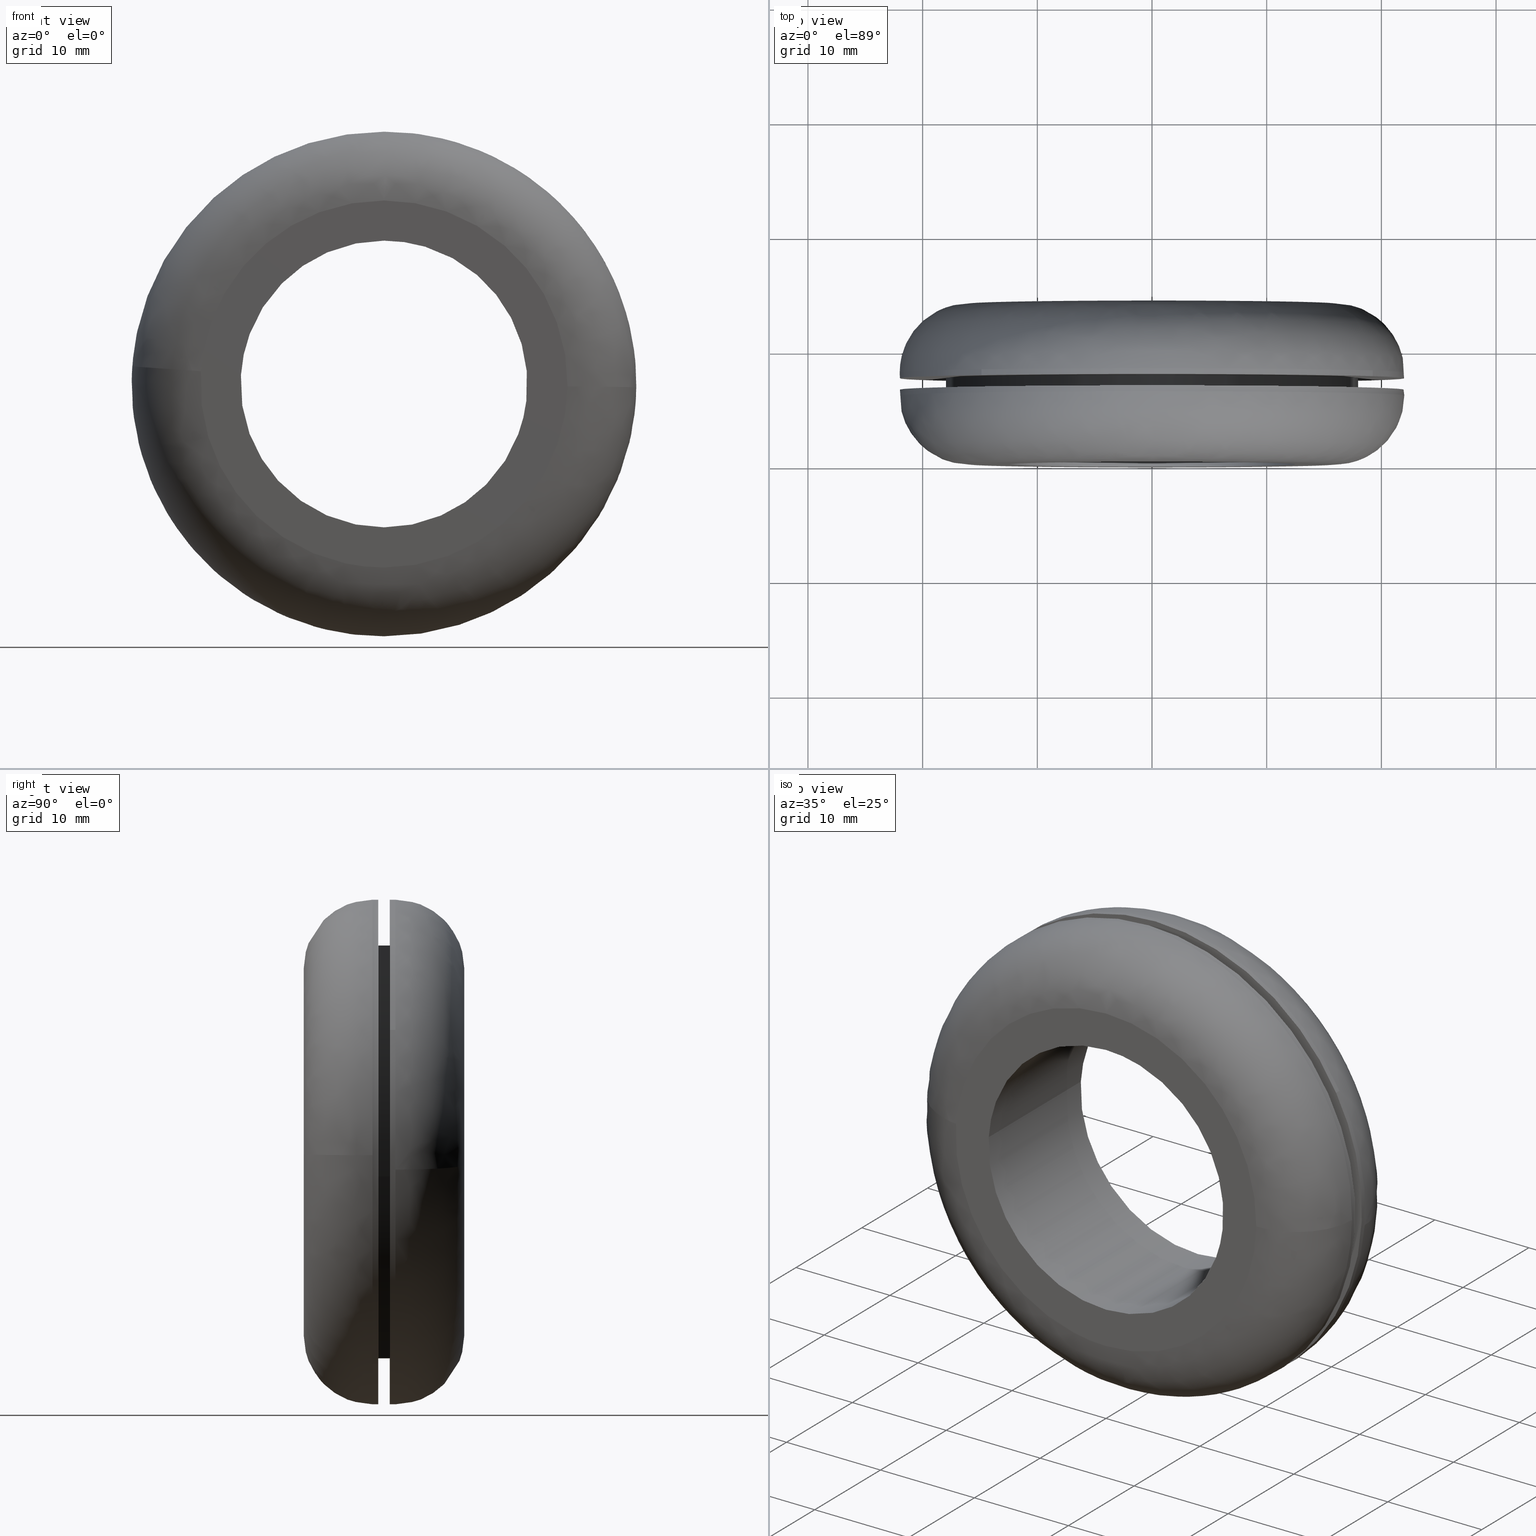
[diagram: canonical four-view strip — front | top / right | iso, engineering-drawing reading convention]
A machine part, canonical four-view strip (front | top / right | iso — engineering-drawing reading convention). The complete STEP part file that produces these views, byte-faithful:
ISO-10303-21;
HEADER;
/****************************************************************
 * Generated by software with PDE/Lib inside                    *
 * PDElib Version 4.4.1-0003, patched  Thursday August 19 11:58 *
 * International Technegroup Inc. (www.iti-oh.com)              *
 ****************************************************************/
FILE_DESCRIPTION((''),'2;1');
FILE_NAME('','2005-12-14T13:39:36',(''),(''),'','CADfix','');
FILE_SCHEMA(('AUTOMOTIVE_DESIGN'));
ENDSEC;
DATA;
#5=APPLICATION_CONTEXT('automotive design');
#6=APPLICATION_PROTOCOL_DEFINITION('Draft International Standard','automotive_design',1998,#5);
#7=PRODUCT_CONTEXT('None',#5,'mechanical');
#8=PRODUCT('grommet','','None',(#7));
#9=PRODUCT_RELATED_PRODUCT_CATEGORY('part','description',(#8));
#10=PRODUCT_DEFINITION_FORMATION('None','None',#8);
#11=PRODUCT_DEFINITION_CONTEXT('part definition',#5,'design');
#12=PRODUCT_DEFINITION('None','None',#10,#11);
#18=(NAMED_UNIT(*)PLANE_ANGLE_UNIT()SI_UNIT($,.RADIAN.));
#19=DIMENSIONAL_EXPONENTS(0.0,0.0,0.0,0.0,0.0,0.0,0.0);
#20=PLANE_ANGLE_MEASURE_WITH_UNIT(PLANE_ANGLE_MEASURE(0.017453292500000),#18);
#24=(CONVERSION_BASED_UNIT('DEGREE',#20)NAMED_UNIT(#19)PLANE_ANGLE_UNIT());
#28=(NAMED_UNIT(*)SI_UNIT($,.STERADIAN.)SOLID_ANGLE_UNIT());
#32=(LENGTH_UNIT()NAMED_UNIT(*)SI_UNIT(.MILLI.,.METRE.));
#34=UNCERTAINTY_MEASURE_WITH_UNIT(LENGTH_MEASURE(0.001000000000000),#32,'DISTANCE_ACCURACY_VALUE','');
#36=(GEOMETRIC_REPRESENTATION_CONTEXT(3)GLOBAL_UNCERTAINTY_ASSIGNED_CONTEXT((#34))GLOBAL_UNIT_ASSIGNED_CONTEXT((#24,#28,#32))REPRESENTATION_CONTEXT('None','None'));
#37=AXIS2_PLACEMENT_3D('',#38,#39,#40);
#38=CARTESIAN_POINT('',(0.0,0.0,0.0));
#39=DIRECTION('',(0.0,0.0,1.0));
#40=DIRECTION('',(1.0,0.0,0.0));
#41=ADVANCED_BREP_SHAPE_REPRESENTATION('',(#37,#1233),#36);
#42=PRODUCT_DEFINITION_SHAPE('','',#12);
#43=SHAPE_DEFINITION_REPRESENTATION(#42,#41);
#44=CARTESIAN_POINT('',(11.940034953636161,6.512500000001182,-18.477975140852053));
#45=CARTESIAN_POINT('',(13.010386983719972,6.512500000001182,-17.786338716705046));
#46=CARTESIAN_POINT('',(13.993720846110801,6.512500000001182,-16.975740834529830));
#47=CARTESIAN_POINT('',(30.969461680640642,6.512500000001182,-2.982019988419031));
#48=CARTESIAN_POINT('',(16.975740834529830,6.512500000001182,13.993720846110801));
#49=CARTESIAN_POINT('',(2.982019988419031,6.512500000001182,30.969461680640642));
#50=CARTESIAN_POINT('',(-13.993720846110801,6.512500000001182,16.975740834529830));
#51=CARTESIAN_POINT('',(-30.969461680640642,6.512500000001182,2.982019988419031));
#52=CARTESIAN_POINT('',(-16.975740834529830,6.512500000001182,-13.993720846110801));
#53=CARTESIAN_POINT('',(11.940034953636161,5.987187499951535,-18.477975140852053));
#54=CARTESIAN_POINT('',(13.010386983719972,5.987187499951535,-17.786338716705046));
#55=CARTESIAN_POINT('',(13.993720846110801,5.987187499951535,-16.975740834529830));
#56=CARTESIAN_POINT('',(30.969461680640642,5.987187499951536,-2.982019988419031));
#57=CARTESIAN_POINT('',(16.975740834529830,5.987187499951535,13.993720846110801));
#58=CARTESIAN_POINT('',(2.982019988419031,5.987187499951536,30.969461680640642));
#59=CARTESIAN_POINT('',(-13.993720846110801,5.987187499951535,16.975740834529830));
#60=CARTESIAN_POINT('',(-30.969461680640642,5.987187499951536,2.982019988419031));
#61=CARTESIAN_POINT('',(-16.975740834529830,5.987187499951535,-13.993720846110801));
#69=(BOUNDED_SURFACE()B_SPLINE_SURFACE(2,1,((#44,#53),(#45,#54),(#46,#55),(#47,#56),(#48,#57),(#49,#58),(#50,#59),(#51,#60),(#52,#61)),.UNSPECIFIED.,.F.,.F.,.U.)B_SPLINE_SURFACE_WITH_KNOTS((3,2,2,2,3),(2,2),(0.0,2.916063479106587,39.366856967938944,75.817650456771304,112.268443945603710),(0.0,1.0),.UNSPECIFIED.)GEOMETRIC_REPRESENTATION_ITEM()RATIONAL_B_SPLINE_SURFACE(((0.956886118190660,0.956886118190660),(0.976568542494924,0.976568542494924),(1.0,1.0),(0.707106781186548,0.707106781186548),(1.0,1.0),(0.707106781186548,0.707106781186548),(1.0,1.0),(0.707106781186548,0.707106781186548),(1.0,1.0)))REPRESENTATION_ITEM('')SURFACE());
#70=CARTESIAN_POINT('',(11.940031599501340,5.999999999991699,-18.477977308213621));
#71=VERTEX_POINT('',#70);
#72=CARTESIAN_POINT('',(21.998262972483801,5.999999999952745,-0.276452877445878));
#73=VERTEX_POINT('',#72);
#74=CARTESIAN_POINT('',(11.940031599501340,5.999999999991699,-18.477977308213621));
#75=CARTESIAN_POINT('',(21.849997897103098,5.999999999978408,-12.074391635942851));
#76=CARTESIAN_POINT('',(21.998262972483801,5.999999999952745,-0.276452877445878));
#84=(BOUNDED_CURVE()B_SPLINE_CURVE(2,(#74,#75,#76),.UNSPECIFIED.,.F.,.U.)B_SPLINE_CURVE_WITH_KNOTS((3,3),(0.092934715246670,0.247784295921534),.UNSPECIFIED.)CURVE()GEOMETRIC_REPRESENTATION_ITEM()RATIONAL_B_SPLINE_CURVE((0.863190116287468,0.816652468351261,0.994854295643566))REPRESENTATION_ITEM(''));
#85=EDGE_CURVE('',#71,#73,#84,.T.);
#86=ORIENTED_EDGE('',*,*,#85,.F.);
#87=CARTESIAN_POINT('',(11.940031622767791,6.500000000000000,-18.477977293180370));
#88=VERTEX_POINT('',#87);
#89=CARTESIAN_POINT('',(11.940031622767791,6.500000000000000,-18.477977293180370));
#90=CARTESIAN_POINT('',(11.940031599501340,5.999999999991699,-18.477977308213621));
#91=QUASI_UNIFORM_CURVE('',1,(#89,#90),.UNSPECIFIED.,.F.,.U.);
#92=EDGE_CURVE('',#88,#71,#91,.T.);
#93=ORIENTED_EDGE('',*,*,#92,.F.);
#94=CARTESIAN_POINT('',(0.0,6.500000000000000,22.0));
#95=VERTEX_POINT('',#94);
#96=CARTESIAN_POINT('',(11.940031622767791,6.500000000000000,-18.477977293180373));
#97=CARTESIAN_POINT('',(22.000000000000004,6.500000000000000,-11.977463809352264));
#98=CARTESIAN_POINT('',(22.0,6.500000000000000,-3.673819E-016));
#99=CARTESIAN_POINT('',(22.000000000000007,6.500000000000001,22.000000000000007));
#100=CARTESIAN_POINT('',(0.0,6.500000000000000,22.0));
#108=(BOUNDED_CURVE()B_SPLINE_CURVE(2,(#96,#97,#98,#99,#100),.UNSPECIFIED.,.F.,.U.)B_SPLINE_CURVE_WITH_KNOTS((3,2,3),(0.092934715438809,0.250000000000000,0.500000000000000),.UNSPECIFIED.)CURVE()GEOMETRIC_REPRESENTATION_ITEM()RATIONAL_B_SPLINE_CURVE((0.863190116171980,0.815986572964088,1.0,0.707106781186548,1.0))REPRESENTATION_ITEM(''));
#109=EDGE_CURVE('',#88,#95,#108,.T.);
#110=ORIENTED_EDGE('',*,*,#109,.T.);
#111=CARTESIAN_POINT('',(-16.975742520003529,6.500000000000000,-13.993718801467210));
#112=VERTEX_POINT('',#111);
#113=CARTESIAN_POINT('',(0.0,6.500000000000000,22.0));
#114=CARTESIAN_POINT('',(-22.000000000000007,6.500000000000001,22.000000000000007));
#115=CARTESIAN_POINT('',(-22.0,6.500000000000000,-3.673819E-016));
#116=CARTESIAN_POINT('',(-22.000000000000007,6.500000000000001,-7.898805609008632));
#117=CARTESIAN_POINT('',(-16.975742520003532,6.500000000000000,-13.993718801467210));
#125=(BOUNDED_CURVE()B_SPLINE_CURVE(2,(#113,#114,#115,#116,#117),.UNSPECIFIED.,.F.,.U.)B_SPLINE_CURVE_WITH_KNOTS((3,2,3),(0.500000000000000,0.750000000000000,0.860504607643865),.UNSPECIFIED.)CURVE()GEOMETRIC_REPRESENTATION_ITEM()RATIONAL_B_SPLINE_CURVE((1.0,0.707106781186548,1.0,0.870535799093882,0.855522723988222))REPRESENTATION_ITEM(''));
#126=EDGE_CURVE('',#95,#112,#125,.T.);
#127=ORIENTED_EDGE('',*,*,#126,.T.);
#128=CARTESIAN_POINT('',(-16.975742585224250,5.999999999999643,-13.993718722348120));
#129=VERTEX_POINT('',#128);
#130=CARTESIAN_POINT('',(-16.975742520003529,6.500000000000000,-13.993718801467210));
#131=CARTESIAN_POINT('',(-16.975742585224250,5.999999999999643,-13.993718722348120));
#132=QUASI_UNIFORM_CURVE('',1,(#130,#131),.UNSPECIFIED.,.F.,.U.);
#133=EDGE_CURVE('',#112,#129,#132,.T.);
#134=ORIENTED_EDGE('',*,*,#133,.T.);
#135=CARTESIAN_POINT('',(-21.946444824489291,5.999999999953007,1.534131534662899));
#136=VERTEX_POINT('',#135);
#137=CARTESIAN_POINT('',(-21.946444824489284,5.999999999953007,1.534131534662899));
#138=CARTESIAN_POINT('',(-21.999999999999993,6.0,0.768000549246839));
#139=CARTESIAN_POINT('',(-22.0,6.0,-3.673819E-016));
#140=CARTESIAN_POINT('',(-21.999999999999996,5.999999999999999,-7.898805551131971));
#141=CARTESIAN_POINT('',(-16.975742585224253,5.999999999999643,-13.993718722348115));
#149=(BOUNDED_CURVE()B_SPLINE_CURVE(2,(#137,#138,#139,#140,#141),.UNSPECIFIED.,.F.,.U.)B_SPLINE_CURVE_WITH_KNOTS((3,2,3),(0.737833686535085,0.750000000000000,0.860504606938995),.UNSPECIFIED.)CURVE()GEOMETRIC_REPRESENTATION_ITEM()RATIONAL_B_SPLINE_CURVE((0.972879876386962,0.985746277152670,1.0,0.870535799919689,0.855522724179748))REPRESENTATION_ITEM(''));
#150=EDGE_CURVE('',#136,#129,#149,.T.);
#151=ORIENTED_EDGE('',*,*,#150,.F.);
#152=CARTESIAN_POINT('',(0.0,6.0,22.0));
#153=VERTEX_POINT('',#152);
#154=CARTESIAN_POINT('',(0.0,6.0,22.0));
#155=CARTESIAN_POINT('',(-20.515810639859708,6.0,22.000000000000004));
#156=CARTESIAN_POINT('',(-21.946444824489284,5.999999999953007,1.534131534662899));
#164=(BOUNDED_CURVE()B_SPLINE_CURVE(2,(#154,#155,#156),.UNSPECIFIED.,.F.,.U.)B_SPLINE_CURVE_WITH_KNOTS((3,3),(0.500000000000000,0.737833686535085),.UNSPECIFIED.)CURVE()GEOMETRIC_REPRESENTATION_ITEM()RATIONAL_B_SPLINE_CURVE((1.0,0.721360504033877,0.972879876386962))REPRESENTATION_ITEM(''));
#165=EDGE_CURVE('',#153,#136,#164,.T.);
#166=ORIENTED_EDGE('',*,*,#165,.F.);
#167=CARTESIAN_POINT('',(21.998262972483797,5.999999999952745,-0.276452877445878));
#168=CARTESIAN_POINT('',(22.0,6.000000000000001,-0.138231895833697));
#169=CARTESIAN_POINT('',(22.0,6.0,-3.673819E-016));
#170=CARTESIAN_POINT('',(22.000000000000007,6.0,22.000000000000007));
#171=CARTESIAN_POINT('',(0.0,6.0,22.0));
#179=(BOUNDED_CURVE()B_SPLINE_CURVE(2,(#167,#168,#169,#170,#171),.UNSPECIFIED.,.F.,.U.)B_SPLINE_CURVE_WITH_KNOTS((3,2,3),(0.247784295921534,0.250000000000000,0.500000000000000),.UNSPECIFIED.)CURVE()GEOMETRIC_REPRESENTATION_ITEM()RATIONAL_B_SPLINE_CURVE((0.994854295643566,0.997404141202080,1.0,0.707106781186548,1.0))REPRESENTATION_ITEM(''));
#180=EDGE_CURVE('',#73,#153,#179,.T.);
#181=ORIENTED_EDGE('',*,*,#180,.F.);
#182=EDGE_LOOP('',(#86,#93,#110,#127,#134,#151,#166,#181));
#183=FACE_OUTER_BOUND('',#182,.T.);
#184=ADVANCED_FACE('',(#183),#69,.T.);
#185=CARTESIAN_POINT('',(-16.975740834529830,6.512500000001182,-13.993720846110801));
#186=CARTESIAN_POINT('',(-4.514448557379168,6.512500000001182,-29.110477174648679));
#187=CARTESIAN_POINT('',(11.940034953636161,6.512500000001182,-18.477975140852053));
#188=CARTESIAN_POINT('',(-16.975740834529830,5.987187499951535,-13.993720846110801));
#189=CARTESIAN_POINT('',(-4.514448557379168,5.987187499951536,-29.110477174648679));
#190=CARTESIAN_POINT('',(11.940034953636161,5.987187499951535,-18.477975140852053));
#198=(BOUNDED_SURFACE()B_SPLINE_SURFACE(2,1,((#185,#188),(#186,#189),(#187,#190)),.UNSPECIFIED.,.F.,.F.,.U.)B_SPLINE_SURFACE_WITH_KNOTS((3,3),(2,2),(0.0,33.497947039558227),(0.0,1.0),.UNSPECIFIED.)GEOMETRIC_REPRESENTATION_ITEM()RATIONAL_B_SPLINE_SURFACE(((1.0,1.0),(0.730538238691624,0.730538238691624),(0.956886118190660,0.956886118190660)))REPRESENTATION_ITEM('')SURFACE());
#199=CARTESIAN_POINT('',(0.0,6.0,-22.0));
#200=VERTEX_POINT('',#199);
#201=CARTESIAN_POINT('',(0.0,6.0,-22.0));
#202=CARTESIAN_POINT('',(6.489471872294156,6.0,-22.000000000000004));
#203=CARTESIAN_POINT('',(11.940031599501340,5.999999999991699,-18.477977308213621));
#211=(BOUNDED_CURVE()B_SPLINE_CURVE(2,(#201,#202,#203),.UNSPECIFIED.,.F.,.U.)B_SPLINE_CURVE_WITH_KNOTS((3,3),(0.0,0.092934715246670),.UNSPECIFIED.)CURVE()GEOMETRIC_REPRESENTATION_ITEM()RATIONAL_B_SPLINE_CURVE((1.0,0.891120208447565,0.863190116287468))REPRESENTATION_ITEM(''));
#212=EDGE_CURVE('',#200,#71,#211,.T.);
#213=ORIENTED_EDGE('',*,*,#212,.F.);
#214=CARTESIAN_POINT('',(-16.975742585224253,5.999999999999643,-13.993718722348115));
#215=CARTESIAN_POINT('',(-10.375875295237387,6.0,-22.000000000000004));
#216=CARTESIAN_POINT('',(0.0,6.0,-22.0));
#224=(BOUNDED_CURVE()B_SPLINE_CURVE(2,(#214,#215,#216),.UNSPECIFIED.,.F.,.U.)B_SPLINE_CURVE_WITH_KNOTS((3,3),(0.860504606938995,1.0),.UNSPECIFIED.)CURVE()GEOMETRIC_REPRESENTATION_ITEM()RATIONAL_B_SPLINE_CURVE((0.855522724179748,0.836570981266858,1.0))REPRESENTATION_ITEM(''));
#225=EDGE_CURVE('',#129,#200,#224,.T.);
#226=ORIENTED_EDGE('',*,*,#225,.F.);
#227=ORIENTED_EDGE('',*,*,#133,.F.);
#228=CARTESIAN_POINT('',(0.0,6.500000000000000,-22.0));
#229=VERTEX_POINT('',#228);
#230=CARTESIAN_POINT('',(-16.975742520003532,6.500000000000000,-13.993718801467210));
#231=CARTESIAN_POINT('',(-10.375875232565738,6.500000000000001,-22.0));
#232=CARTESIAN_POINT('',(0.0,6.500000000000000,-22.0));
#240=(BOUNDED_CURVE()B_SPLINE_CURVE(2,(#230,#231,#232),.UNSPECIFIED.,.F.,.U.)B_SPLINE_CURVE_WITH_KNOTS((3,3),(0.860504607643865,1.0),.UNSPECIFIED.)CURVE()GEOMETRIC_REPRESENTATION_ITEM()RATIONAL_B_SPLINE_CURVE((0.855522723988222,0.836570982092665,1.0))REPRESENTATION_ITEM(''));
#241=EDGE_CURVE('',#112,#229,#240,.T.);
#242=ORIENTED_EDGE('',*,*,#241,.T.);
#243=CARTESIAN_POINT('',(0.0,6.500000000000000,-22.0));
#244=CARTESIAN_POINT('',(6.489471887350197,6.500000000000000,-22.0));
#245=CARTESIAN_POINT('',(11.940031622767792,6.500000000000000,-18.477977293180377));
#253=(BOUNDED_CURVE()B_SPLINE_CURVE(2,(#243,#244,#245),.UNSPECIFIED.,.F.,.U.)B_SPLINE_CURVE_WITH_KNOTS((3,3),(0.0,0.092934715438809),.UNSPECIFIED.)CURVE()GEOMETRIC_REPRESENTATION_ITEM()RATIONAL_B_SPLINE_CURVE((1.0,0.891120208222460,0.863190116171979))REPRESENTATION_ITEM(''));
#254=EDGE_CURVE('',#229,#88,#253,.T.);
#255=ORIENTED_EDGE('',*,*,#254,.T.);
#256=ORIENTED_EDGE('',*,*,#92,.T.);
#257=EDGE_LOOP('',(#213,#226,#227,#242,#255,#256));
#258=FACE_OUTER_BOUND('',#257,.T.);
#259=ADVANCED_FACE('',(#258),#198,.T.);
#260=CARTESIAN_POINT('',(17.874171474545992,7.525000000000002,-2.124616223821653));
#261=CARTESIAN_POINT('',(17.934977078074905,7.525000000000001,-1.613065115483598));
#262=CARTESIAN_POINT('',(17.966426371593599,7.525000000000001,-1.098873711627426));
#263=CARTESIAN_POINT('',(19.065300083221029,7.525000000000001,16.867552659966176));
#264=CARTESIAN_POINT('',(1.098873711627426,7.525000000000001,17.966426371593599));
#265=CARTESIAN_POINT('',(-16.867552659966176,7.525000000000001,19.065300083221029));
#266=CARTESIAN_POINT('',(-17.966426371593599,7.525000000000001,1.098873711627425));
#267=CARTESIAN_POINT('',(17.874171474545992,6.474374999999999,-2.124616223821653));
#268=CARTESIAN_POINT('',(17.934977078074905,6.474374999999998,-1.613065115483598));
#269=CARTESIAN_POINT('',(17.966426371593599,6.474374999999999,-1.098873711627426));
#270=CARTESIAN_POINT('',(19.065300083221029,6.474375000000001,16.867552659966176));
#271=CARTESIAN_POINT('',(1.098873711627426,6.474374999999999,17.966426371593599));
#272=CARTESIAN_POINT('',(-16.867552659966176,6.474375000000001,19.065300083221029));
#273=CARTESIAN_POINT('',(-17.966426371593599,6.474374999999999,1.098873711627425));
#281=(BOUNDED_SURFACE()B_SPLINE_SURFACE(2,1,((#260,#267),(#261,#268),(#262,#269),(#263,#270),(#264,#271),(#265,#272),(#266,#273)),.UNSPECIFIED.,.F.,.F.,.U.)B_SPLINE_SURFACE_WITH_KNOTS((3,2,2,3),(2,2),(0.0,1.192935059634515,31.016311550497349,60.839688041360183),(0.0,1.0),.UNSPECIFIED.)GEOMETRIC_REPRESENTATION_ITEM()RATIONAL_B_SPLINE_SURFACE(((0.977505800795127,0.977505800795127),(0.988284271247462,0.988284271247462),(1.0,1.0),(0.707106781186548,0.707106781186548),(1.0,1.0),(0.707106781186548,0.707106781186548),(1.0,1.0)))REPRESENTATION_ITEM('')SURFACE());
#282=CARTESIAN_POINT('',(17.874172393240940,6.499999999999577,-2.124608494909751));
#283=VERTEX_POINT('',#282);
#284=CARTESIAN_POINT('',(0.0,6.500000000000000,18.0));
#285=VERTEX_POINT('',#284);
#286=CARTESIAN_POINT('',(17.874172393240944,6.499999999999577,-2.124608494909752));
#287=CARTESIAN_POINT('',(18.0,6.500000000000000,-1.066030248424147));
#288=CARTESIAN_POINT('',(18.0,6.500000000000000,-3.673819E-016));
#289=CARTESIAN_POINT('',(18.000000000000007,6.500000000000000,18.000000000000007));
#290=CARTESIAN_POINT('',(0.0,6.500000000000000,18.0));
#298=(BOUNDED_CURVE()B_SPLINE_CURVE(2,(#286,#287,#288,#289,#290),.UNSPECIFIED.,.F.,.U.)B_SPLINE_CURVE_WITH_KNOTS((3,2,3),(0.229562546593787,0.250000000000000,0.500000000000000),.UNSPECIFIED.)CURVE()GEOMETRIC_REPRESENTATION_ITEM()RATIONAL_B_SPLINE_CURVE((0.956026897424087,0.976056033950018,1.0,0.707106781186547,1.0))REPRESENTATION_ITEM(''));
#299=EDGE_CURVE('',#283,#285,#298,.T.);
#300=ORIENTED_EDGE('',*,*,#299,.F.);
#301=CARTESIAN_POINT('',(17.874172381895988,7.500000000000000,-2.124608590354324));
#302=VERTEX_POINT('',#301);
#303=CARTESIAN_POINT('',(17.874172381895988,7.500000000000000,-2.124608590354324));
#304=CARTESIAN_POINT('',(17.874172393240940,6.499999999999577,-2.124608494909751));
#305=QUASI_UNIFORM_CURVE('',1,(#303,#304),.UNSPECIFIED.,.F.,.U.);
#306=EDGE_CURVE('',#302,#283,#305,.T.);
#307=ORIENTED_EDGE('',*,*,#306,.F.);
#308=CARTESIAN_POINT('',(0.0,7.500000000000000,18.0));
#309=VERTEX_POINT('',#308);
#310=CARTESIAN_POINT('',(17.874172381895985,7.500000000000000,-2.124608590354324));
#311=CARTESIAN_POINT('',(18.0,7.500000000000000,-1.066030296650943));
#312=CARTESIAN_POINT('',(18.0,7.500000000000000,-3.673819E-016));
#313=CARTESIAN_POINT('',(18.000000000000007,7.500000000000000,18.000000000000007));
#314=CARTESIAN_POINT('',(0.0,7.500000000000000,18.0));
#322=(BOUNDED_CURVE()B_SPLINE_CURVE(2,(#310,#311,#312,#313,#314),.UNSPECIFIED.,.F.,.U.)B_SPLINE_CURVE_WITH_KNOTS((3,2,3),(0.229562545691343,0.250000000000000,0.500000000000000),.UNSPECIFIED.)CURVE()GEOMETRIC_REPRESENTATION_ITEM()RATIONAL_B_SPLINE_CURVE((0.956026895655258,0.976056032892738,1.0,0.707106781186547,1.0))REPRESENTATION_ITEM(''));
#323=EDGE_CURVE('',#302,#309,#322,.T.);
#324=ORIENTED_EDGE('',*,*,#323,.T.);
#325=CARTESIAN_POINT('',(-17.966427382863390,7.500000000000000,1.098857177262872));
#326=VERTEX_POINT('',#325);
#327=CARTESIAN_POINT('',(0.0,7.500000000000000,18.0));
#328=CARTESIAN_POINT('',(-16.932724816470770,7.500000000000000,18.0));
#329=CARTESIAN_POINT('',(-17.966427382863383,7.500000000000000,1.098857177262872));
#337=(BOUNDED_CURVE()B_SPLINE_CURVE(2,(#327,#328,#329),.UNSPECIFIED.,.F.,.U.)B_SPLINE_CURVE_WITH_KNOTS((3,3),(0.500000000000000,0.739333121035476),.UNSPECIFIED.)CURVE()GEOMETRIC_REPRESENTATION_ITEM()RATIONAL_B_SPLINE_CURVE((1.0,0.719603807244999,0.976072381998152))REPRESENTATION_ITEM(''));
#338=EDGE_CURVE('',#309,#326,#337,.T.);
#339=ORIENTED_EDGE('',*,*,#338,.T.);
#340=CARTESIAN_POINT('',(-17.966427395491010,6.500000000000795,1.098856970796745));
#341=VERTEX_POINT('',#340);
#342=CARTESIAN_POINT('',(-17.966427382863390,7.500000000000000,1.098857177262872));
#343=CARTESIAN_POINT('',(-17.966427395491010,6.500000000000795,1.098856970796745));
#344=QUASI_UNIFORM_CURVE('',1,(#342,#343),.UNSPECIFIED.,.F.,.U.);
#345=EDGE_CURVE('',#326,#341,#344,.T.);
#346=ORIENTED_EDGE('',*,*,#345,.T.);
#347=CARTESIAN_POINT('',(0.0,6.500000000000000,18.0));
#348=CARTESIAN_POINT('',(-16.932725011421432,6.500000000000001,18.0));
#349=CARTESIAN_POINT('',(-17.966427395491017,6.500000000000795,1.098856970796745));
#357=(BOUNDED_CURVE()B_SPLINE_CURVE(2,(#347,#348,#349),.UNSPECIFIED.,.F.,.U.)B_SPLINE_CURVE_WITH_KNOTS((3,3),(0.500000000000000,0.739333123018345),.UNSPECIFIED.)CURVE()GEOMETRIC_REPRESENTATION_ITEM()RATIONAL_B_SPLINE_CURVE((1.0,0.719603804921923,0.976072386247825))REPRESENTATION_ITEM(''));
#358=EDGE_CURVE('',#285,#341,#357,.T.);
#359=ORIENTED_EDGE('',*,*,#358,.F.);
#360=EDGE_LOOP('',(#300,#307,#324,#339,#346,#359));
#361=FACE_OUTER_BOUND('',#360,.T.);
#362=ADVANCED_FACE('',(#361),#281,.T.);
#363=CARTESIAN_POINT('',(-17.966426371593599,7.525000000000001,1.098873711627425));
#364=CARTESIAN_POINT('',(-19.065300083221029,7.525000000000001,-16.867552659966176));
#365=CARTESIAN_POINT('',(-1.098873711627426,7.525000000000001,-17.966426371593599));
#366=CARTESIAN_POINT('',(15.867782835111013,7.525000000000001,-19.004151541185493));
#367=CARTESIAN_POINT('',(17.874171474545992,7.525000000000002,-2.124616223821653));
#368=CARTESIAN_POINT('',(-17.966426371593599,6.474374999999999,1.098873711627425));
#369=CARTESIAN_POINT('',(-19.065300083221029,6.474375000000001,-16.867552659966176));
#370=CARTESIAN_POINT('',(-1.098873711627426,6.474374999999999,-17.966426371593599));
#371=CARTESIAN_POINT('',(15.867782835111013,6.474375000000000,-19.004151541185493));
#372=CARTESIAN_POINT('',(17.874171474545992,6.474374999999999,-2.124616223821653));
#380=(BOUNDED_SURFACE()B_SPLINE_SURFACE(2,1,((#363,#368),(#364,#369),(#365,#370),(#366,#371),(#367,#372)),.UNSPECIFIED.,.F.,.F.,.U.)B_SPLINE_SURFACE_WITH_KNOTS((3,2,3),(2,2),(0.0,29.823376490862831,58.453817922091147),(0.0,1.0),.UNSPECIFIED.)GEOMETRIC_REPRESENTATION_ITEM()RATIONAL_B_SPLINE_SURFACE(((1.0,1.0),(0.707106781186548,0.707106781186548),(1.0,1.0),(0.718822509939086,0.718822509939086),(0.977505800795127,0.977505800795127)))REPRESENTATION_ITEM('')SURFACE());
#381=CARTESIAN_POINT('',(0.0,6.500000000000000,-18.0));
#382=VERTEX_POINT('',#381);
#383=CARTESIAN_POINT('',(0.0,6.500000000000000,-18.0));
#384=CARTESIAN_POINT('',(15.987148428738006,6.500000000000003,-18.000000000000007));
#385=CARTESIAN_POINT('',(17.874172393240944,6.499999999999577,-2.124608494909752));
#393=(BOUNDED_CURVE()B_SPLINE_CURVE(2,(#383,#384,#385),.UNSPECIFIED.,.F.,.U.)B_SPLINE_CURVE_WITH_KNOTS((3,3),(0.0,0.229562546593787),.UNSPECIFIED.)CURVE()GEOMETRIC_REPRESENTATION_ITEM()RATIONAL_B_SPLINE_CURVE((1.0,0.731050747236530,0.956026897424087))REPRESENTATION_ITEM(''));
#394=EDGE_CURVE('',#382,#283,#393,.T.);
#395=ORIENTED_EDGE('',*,*,#394,.F.);
#396=CARTESIAN_POINT('',(-17.966427395491017,6.500000000000795,1.098856970796745));
#397=CARTESIAN_POINT('',(-17.999999999999996,6.499999999999999,0.549941345490025));
#398=CARTESIAN_POINT('',(-18.0,6.500000000000000,-3.673819E-016));
#399=CARTESIAN_POINT('',(-18.000000000000007,6.500000000000000,-18.000000000000007));
#400=CARTESIAN_POINT('',(0.0,6.500000000000000,-18.0));
#408=(BOUNDED_CURVE()B_SPLINE_CURVE(2,(#396,#397,#398,#399,#400),.UNSPECIFIED.,.F.,.U.)B_SPLINE_CURVE_WITH_KNOTS((3,2,3),(0.739333123018345,0.750000000000000,1.0),.UNSPECIFIED.)CURVE()GEOMETRIC_REPRESENTATION_ITEM()RATIONAL_B_SPLINE_CURVE((0.976072386247825,0.987502976264624,1.0,0.707106781186547,1.0))REPRESENTATION_ITEM(''));
#409=EDGE_CURVE('',#341,#382,#408,.T.);
#410=ORIENTED_EDGE('',*,*,#409,.F.);
#411=ORIENTED_EDGE('',*,*,#345,.F.);
#412=CARTESIAN_POINT('',(0.0,7.500000000000000,-18.0));
#413=VERTEX_POINT('',#412);
#414=CARTESIAN_POINT('',(-17.966427382863383,7.500000000000000,1.098857177262872));
#415=CARTESIAN_POINT('',(-18.000000000000004,7.500000000000000,0.549941449012534));
#416=CARTESIAN_POINT('',(-18.0,7.500000000000000,-3.673819E-016));
#417=CARTESIAN_POINT('',(-18.000000000000007,7.500000000000000,-18.000000000000007));
#418=CARTESIAN_POINT('',(0.0,7.500000000000000,-18.0));
#426=(BOUNDED_CURVE()B_SPLINE_CURVE(2,(#414,#415,#416,#417,#418),.UNSPECIFIED.,.F.,.U.)B_SPLINE_CURVE_WITH_KNOTS((3,2,3),(0.739333121035476,0.750000000000000,1.0),.UNSPECIFIED.)CURVE()GEOMETRIC_REPRESENTATION_ITEM()RATIONAL_B_SPLINE_CURVE((0.976072381998152,0.987502973941548,1.0,0.707106781186547,1.0))REPRESENTATION_ITEM(''));
#427=EDGE_CURVE('',#326,#413,#426,.T.);
#428=ORIENTED_EDGE('',*,*,#427,.T.);
#429=CARTESIAN_POINT('',(0.0,7.500000000000000,-18.0));
#430=CARTESIAN_POINT('',(15.987148342768814,7.500000000000000,-18.000000000000011));
#431=CARTESIAN_POINT('',(17.874172381895985,7.500000000000000,-2.124608590354324));
#439=(BOUNDED_CURVE()B_SPLINE_CURVE(2,(#429,#430,#431),.UNSPECIFIED.,.F.,.U.)B_SPLINE_CURVE_WITH_KNOTS((3,3),(0.0,0.229562545691343),.UNSPECIFIED.)CURVE()GEOMETRIC_REPRESENTATION_ITEM()RATIONAL_B_SPLINE_CURVE((1.0,0.731050748293809,0.956026895655258))REPRESENTATION_ITEM(''));
#440=EDGE_CURVE('',#413,#302,#439,.T.);
#441=ORIENTED_EDGE('',*,*,#440,.T.);
#442=ORIENTED_EDGE('',*,*,#306,.T.);
#443=EDGE_LOOP('',(#395,#410,#411,#428,#441,#442));
#444=FACE_OUTER_BOUND('',#443,.T.);
#445=ADVANCED_FACE('',(#444),#380,.T.);
#446=CARTESIAN_POINT('',(19.248821403748870,8.012500000051434,10.652834109596343));
#447=CARTESIAN_POINT('',(17.984333202607278,8.012500000051434,12.937663414222058));
#448=CARTESIAN_POINT('',(16.220101409822721,8.012500000051434,14.862984567544521));
#449=CARTESIAN_POINT('',(1.357116842278199,8.012500000051434,31.083085977367251));
#450=CARTESIAN_POINT('',(-14.862984567544521,8.012500000051434,16.220101409822721));
#451=CARTESIAN_POINT('',(19.248821403748870,7.487187499998711,10.652834109596343));
#452=CARTESIAN_POINT('',(17.984333202607278,7.487187499998712,12.937663414222058));
#453=CARTESIAN_POINT('',(16.220101409822721,7.487187499998712,14.862984567544521));
#454=CARTESIAN_POINT('',(1.357116842278199,7.487187499998711,31.083085977367251));
#455=CARTESIAN_POINT('',(-14.862984567544521,7.487187499998712,16.220101409822721));
#463=(BOUNDED_SURFACE()B_SPLINE_SURFACE(2,1,((#446,#451),(#447,#452),(#448,#453),(#449,#454),(#450,#455)),.UNSPECIFIED.,.F.,.F.,.U.)B_SPLINE_SURFACE_WITH_KNOTS((3,2,3),(2,2),(0.0,5.832126958213184,42.282920447045527),(0.0,1.0),.UNSPECIFIED.)GEOMETRIC_REPRESENTATION_ITEM()RATIONAL_B_SPLINE_SURFACE(((0.921270302782944,0.921270302782944),(0.953137084989848,0.953137084989848),(1.0,1.0),(0.707106781186548,0.707106781186548),(1.0,1.0)))REPRESENTATION_ITEM('')SURFACE());
#464=CARTESIAN_POINT('',(19.248823373757212,8.000000000000533,10.652830549946870));
#465=VERTEX_POINT('',#464);
#466=CARTESIAN_POINT('',(0.0,8.0,22.0));
#467=VERTEX_POINT('',#466);
#468=CARTESIAN_POINT('',(19.248823373757208,8.000000000000533,10.652830549946874));
#469=CARTESIAN_POINT('',(12.968986366278509,8.000000000000002,22.000000000000007));
#470=CARTESIAN_POINT('',(0.0,8.0,22.0));
#478=(BOUNDED_CURVE()B_SPLINE_CURVE(2,(#468,#469,#470),.UNSPECIFIED.,.F.,.U.)B_SPLINE_CURVE_WITH_KNOTS((3,3),(0.332484260513294,0.500000000000000),.UNSPECIFIED.)CURVE()GEOMETRIC_REPRESENTATION_ITEM()RATIONAL_B_SPLINE_CURVE((0.870495160132448,0.803743103439292,1.0))REPRESENTATION_ITEM(''));
#479=EDGE_CURVE('',#465,#467,#478,.T.);
#480=ORIENTED_EDGE('',*,*,#479,.T.);
#481=CARTESIAN_POINT('',(-14.862983672340979,8.000000000013181,16.220102230123938));
#482=VERTEX_POINT('',#481);
#483=CARTESIAN_POINT('',(0.0,8.0,22.0));
#484=CARTESIAN_POINT('',(-8.555331401854355,8.000000000000002,21.999999999999996));
#485=CARTESIAN_POINT('',(-14.862983672340976,8.000000000013182,16.220102230123949));
#493=(BOUNDED_CURVE()B_SPLINE_CURVE(2,(#483,#484,#485),.UNSPECIFIED.,.F.,.U.)B_SPLINE_CURVE_WITH_KNOTS((3,3),(0.500000000000000,0.618415200752421),.UNSPECIFIED.)CURVE()GEOMETRIC_REPRESENTATION_ITEM()RATIONAL_B_SPLINE_CURVE((1.0,0.861267962780729,0.853959781866357))REPRESENTATION_ITEM(''));
#494=EDGE_CURVE('',#467,#482,#493,.T.);
#495=ORIENTED_EDGE('',*,*,#494,.T.);
#496=CARTESIAN_POINT('',(-14.862983696161990,7.500000000000000,16.220102208297622));
#497=VERTEX_POINT('',#496);
#498=CARTESIAN_POINT('',(-14.862983672340979,8.000000000013181,16.220102230123938));
#499=CARTESIAN_POINT('',(-14.862983696161990,7.500000000000000,16.220102208297622));
#500=QUASI_UNIFORM_CURVE('',1,(#498,#499),.UNSPECIFIED.,.F.,.U.);
#501=EDGE_CURVE('',#482,#497,#500,.T.);
#502=ORIENTED_EDGE('',*,*,#501,.T.);
#503=CARTESIAN_POINT('',(0.0,7.500000000000000,22.0));
#504=VERTEX_POINT('',#503);
#505=CARTESIAN_POINT('',(0.0,7.500000000000000,22.0));
#506=CARTESIAN_POINT('',(-8.555331420452751,7.500000000000001,22.000000000000004));
#507=CARTESIAN_POINT('',(-14.862983696162022,7.500000000000000,16.220102208297643));
#515=(BOUNDED_CURVE()B_SPLINE_CURVE(2,(#505,#506,#507),.UNSPECIFIED.,.F.,.U.)B_SPLINE_CURVE_WITH_KNOTS((3,3),(0.500000000000000,0.618415200974131),.UNSPECIFIED.)CURVE()GEOMETRIC_REPRESENTATION_ITEM()RATIONAL_B_SPLINE_CURVE((1.0,0.861267962520980,0.853959781838990))REPRESENTATION_ITEM(''));
#516=EDGE_CURVE('',#504,#497,#515,.T.);
#517=ORIENTED_EDGE('',*,*,#516,.F.);
#518=CARTESIAN_POINT('',(19.248823218526699,7.500000000000000,10.652830830436260));
#519=VERTEX_POINT('',#518);
#520=CARTESIAN_POINT('',(19.248823218526692,7.499999999999999,10.652830830436264));
#521=CARTESIAN_POINT('',(12.968986150286980,7.499999999999999,22.0));
#522=CARTESIAN_POINT('',(0.0,7.500000000000000,22.0));
#530=(BOUNDED_CURVE()B_SPLINE_CURVE(2,(#520,#521,#522),.UNSPECIFIED.,.F.,.U.)B_SPLINE_CURVE_WITH_KNOTS((3,3),(0.332484262755645,0.500000000000000),.UNSPECIFIED.)CURVE()GEOMETRIC_REPRESENTATION_ITEM()RATIONAL_B_SPLINE_CURVE((0.870495158345373,0.803743106066369,1.0))REPRESENTATION_ITEM(''));
#531=EDGE_CURVE('',#519,#504,#530,.T.);
#532=ORIENTED_EDGE('',*,*,#531,.F.);
#533=CARTESIAN_POINT('',(19.248823373757212,8.000000000000533,10.652830549946870));
#534=CARTESIAN_POINT('',(19.248823218526699,7.500000000000000,10.652830830436260));
#535=QUASI_UNIFORM_CURVE('',1,(#533,#534),.UNSPECIFIED.,.F.,.U.);
#536=EDGE_CURVE('',#465,#519,#535,.T.);
#537=ORIENTED_EDGE('',*,*,#536,.F.);
#538=EDGE_LOOP('',(#480,#495,#502,#517,#532,#537));
#539=FACE_OUTER_BOUND('',#538,.T.);
#540=ADVANCED_FACE('',(#539),#463,.T.);
#541=CARTESIAN_POINT('',(-14.862984567544521,8.012500000051434,16.220101409822721));
#542=CARTESIAN_POINT('',(-31.083085977367251,8.012500000051434,1.357116842278199));
#543=CARTESIAN_POINT('',(-16.220101409822721,8.012500000051434,-14.862984567544521));
#544=CARTESIAN_POINT('',(-1.357116842278199,8.012500000051434,-31.083085977367251));
#545=CARTESIAN_POINT('',(14.862984567544521,8.012500000051434,-16.220101409822721));
#546=CARTESIAN_POINT('',(27.641016304457494,8.012500000051436,-4.511192586705360));
#547=CARTESIAN_POINT('',(19.248821403748870,8.012500000051434,10.652834109596343));
#548=CARTESIAN_POINT('',(-14.862984567544521,7.487187499998712,16.220101409822721));
#549=CARTESIAN_POINT('',(-31.083085977367251,7.487187499998711,1.357116842278199));
#550=CARTESIAN_POINT('',(-16.220101409822721,7.487187499998712,-14.862984567544521));
#551=CARTESIAN_POINT('',(-1.357116842278199,7.487187499998711,-31.083085977367251));
#552=CARTESIAN_POINT('',(14.862984567544521,7.487187499998712,-16.220101409822721));
#553=CARTESIAN_POINT('',(27.641016304457494,7.487187499998711,-4.511192586705360));
#554=CARTESIAN_POINT('',(19.248821403748870,7.487187499998711,10.652834109596343));
#562=(BOUNDED_SURFACE()B_SPLINE_SURFACE(2,1,((#541,#548),(#542,#549),(#543,#550),(#544,#551),(#545,#552),(#546,#553),(#547,#554)),.UNSPECIFIED.,.F.,.F.,.U.)B_SPLINE_SURFACE_WITH_KNOTS((3,2,2,3),(2,2),(0.0,36.450793488832353,72.901586977664692,103.520253508283900),(0.0,1.0),.UNSPECIFIED.)GEOMETRIC_REPRESENTATION_ITEM()RATIONAL_B_SPLINE_SURFACE(((1.0,1.0),(0.707106781186548,0.707106781186548),(1.0,1.0),(0.707106781186548,0.707106781186548),(1.0,1.0),(0.753969696196700,0.753969696196700),(0.921270302782944,0.921270302782944)))REPRESENTATION_ITEM('')SURFACE());
#563=CARTESIAN_POINT('',(21.946444824489291,8.000000000050179,-1.534131534662882));
#564=VERTEX_POINT('',#563);
#565=CARTESIAN_POINT('',(21.946444824489294,8.000000000050179,-1.534131534662883));
#566=CARTESIAN_POINT('',(22.000000000000004,8.0,-0.768000549246831));
#567=CARTESIAN_POINT('',(22.0,8.0,-3.673819E-016));
#568=CARTESIAN_POINT('',(21.999999999999996,8.0,5.681671692190288));
#569=CARTESIAN_POINT('',(19.248823373757208,8.000000000000533,10.652830549946874));
#577=(BOUNDED_CURVE()B_SPLINE_CURVE(2,(#565,#566,#567,#568,#569),.UNSPECIFIED.,.F.,.U.)B_SPLINE_CURVE_WITH_KNOTS((3,2,3),(0.237833686535085,0.250000000000000,0.332484260513294),.UNSPECIFIED.)CURVE()GEOMETRIC_REPRESENTATION_ITEM()RATIONAL_B_SPLINE_CURVE((0.972879876386962,0.985746277152670,1.0,0.903363677747256,0.870495160132448))REPRESENTATION_ITEM(''));
#578=EDGE_CURVE('',#564,#465,#577,.T.);
#579=ORIENTED_EDGE('',*,*,#578,.T.);
#580=ORIENTED_EDGE('',*,*,#536,.T.);
#581=CARTESIAN_POINT('',(0.0,7.500000000000000,-22.0));
#582=VERTEX_POINT('',#581);
#583=CARTESIAN_POINT('',(0.0,7.500000000000000,-22.0));
#584=CARTESIAN_POINT('',(22.000000000000007,7.500000000000000,-22.000000000000007));
#585=CARTESIAN_POINT('',(22.0,7.500000000000000,-3.673819E-016));
#586=CARTESIAN_POINT('',(22.000000000000007,7.500000000000001,5.681671863170561));
#587=CARTESIAN_POINT('',(19.248823218526692,7.499999999999999,10.652830830436264));
#595=(BOUNDED_CURVE()B_SPLINE_CURVE(2,(#583,#584,#585,#586,#587),.UNSPECIFIED.,.F.,.U.)B_SPLINE_CURVE_WITH_KNOTS((3,2,3),(0.0,0.250000000000000,0.332484262755645),.UNSPECIFIED.)CURVE()GEOMETRIC_REPRESENTATION_ITEM()RATIONAL_B_SPLINE_CURVE((1.0,0.707106781186548,1.0,0.903363675120178,0.870495158345373))REPRESENTATION_ITEM(''));
#596=EDGE_CURVE('',#582,#519,#595,.T.);
#597=ORIENTED_EDGE('',*,*,#596,.F.);
#598=CARTESIAN_POINT('',(-14.862983696162022,7.500000000000000,16.220102208297643));
#599=CARTESIAN_POINT('',(-22.0,7.499999999999999,9.680232384979210));
#600=CARTESIAN_POINT('',(-22.0,7.500000000000000,-3.673819E-016));
#601=CARTESIAN_POINT('',(-22.000000000000007,7.500000000000000,-22.000000000000007));
#602=CARTESIAN_POINT('',(0.0,7.500000000000000,-22.0));
#610=(BOUNDED_CURVE()B_SPLINE_CURVE(2,(#598,#599,#600,#601,#602),.UNSPECIFIED.,.F.,.U.)B_SPLINE_CURVE_WITH_KNOTS((3,2,3),(0.618415200974131,0.750000000000000,1.0),.UNSPECIFIED.)CURVE()GEOMETRIC_REPRESENTATION_ITEM()RATIONAL_B_SPLINE_CURVE((0.853959781838990,0.845838818665568,1.0,0.707106781186548,1.0))REPRESENTATION_ITEM(''));
#611=EDGE_CURVE('',#497,#582,#610,.T.);
#612=ORIENTED_EDGE('',*,*,#611,.F.);
#613=ORIENTED_EDGE('',*,*,#501,.F.);
#614=CARTESIAN_POINT('',(-21.998262972483801,8.000000000050177,0.276452877445863));
#615=VERTEX_POINT('',#614);
#616=CARTESIAN_POINT('',(-14.862983672340976,8.000000000013182,16.220102230123949));
#617=CARTESIAN_POINT('',(-21.878688401845952,8.000000000028200,9.791393991096818));
#618=CARTESIAN_POINT('',(-21.998262972483801,8.000000000050177,0.276452877445863));
#626=(BOUNDED_CURVE()B_SPLINE_CURVE(2,(#616,#617,#618),.UNSPECIFIED.,.F.,.U.)B_SPLINE_CURVE_WITH_KNOTS((3,3),(0.618415200752421,0.747784295921534),.UNSPECIFIED.)CURVE()GEOMETRIC_REPRESENTATION_ITEM()RATIONAL_B_SPLINE_CURVE((0.853959781866357,0.845975564078294,0.994854295643565))REPRESENTATION_ITEM(''));
#627=EDGE_CURVE('',#482,#615,#626,.T.);
#628=ORIENTED_EDGE('',*,*,#627,.T.);
#629=CARTESIAN_POINT('',(0.0,8.0,-22.0));
#630=VERTEX_POINT('',#629);
#631=CARTESIAN_POINT('',(-21.998262972483797,8.000000000050177,0.276452877445863));
#632=CARTESIAN_POINT('',(-22.0,8.0,0.138231895833689));
#633=CARTESIAN_POINT('',(-22.0,8.0,-3.673819E-016));
#634=CARTESIAN_POINT('',(-22.000000000000007,8.0,-22.000000000000007));
#635=CARTESIAN_POINT('',(0.0,8.0,-22.0));
#643=(BOUNDED_CURVE()B_SPLINE_CURVE(2,(#631,#632,#633,#634,#635),.UNSPECIFIED.,.F.,.U.)B_SPLINE_CURVE_WITH_KNOTS((3,2,3),(0.747784295921535,0.750000000000000,1.0),.UNSPECIFIED.)CURVE()GEOMETRIC_REPRESENTATION_ITEM()RATIONAL_B_SPLINE_CURVE((0.994854295643567,0.997404141202081,1.0,0.707106781186548,1.0))REPRESENTATION_ITEM(''));
#644=EDGE_CURVE('',#615,#630,#643,.T.);
#645=ORIENTED_EDGE('',*,*,#644,.T.);
#646=CARTESIAN_POINT('',(0.0,8.0,-22.0));
#647=CARTESIAN_POINT('',(20.515810639859708,8.000000000000002,-22.000000000000004));
#648=CARTESIAN_POINT('',(21.946444824489294,8.000000000050179,-1.534131534662883));
#656=(BOUNDED_CURVE()B_SPLINE_CURVE(2,(#646,#647,#648),.UNSPECIFIED.,.F.,.U.)B_SPLINE_CURVE_WITH_KNOTS((3,3),(0.0,0.237833686535085),.UNSPECIFIED.)CURVE()GEOMETRIC_REPRESENTATION_ITEM()RATIONAL_B_SPLINE_CURVE((1.0,0.721360504033877,0.972879876386962))REPRESENTATION_ITEM(''));
#657=EDGE_CURVE('',#630,#564,#656,.T.);
#658=ORIENTED_EDGE('',*,*,#657,.T.);
#659=EDGE_LOOP('',(#579,#580,#597,#612,#613,#628,#645,#658));
#660=FACE_OUTER_BOUND('',#659,.T.);
#661=ADVANCED_FACE('',(#660),#562,.T.);
#662=CARTESIAN_POINT('',(12.412619079545834,14.350000000000001,-1.475427933209482));
#663=CARTESIAN_POINT('',(12.454845193107571,14.350000000000001,-1.120184107974722));
#664=CARTESIAN_POINT('',(12.476684980273340,14.350000000000000,-0.763106744185713));
#665=CARTESIAN_POINT('',(13.239791724459048,14.350000000000003,11.713578236087622));
#666=CARTESIAN_POINT('',(0.763106744185712,14.350000000000000,12.476684980273340));
#667=CARTESIAN_POINT('',(-11.713578236087622,14.350000000000003,13.239791724459048));
#668=CARTESIAN_POINT('',(-12.476684980273340,14.350000000000000,0.763106744185712));
#669=CARTESIAN_POINT('',(12.412619079545834,-0.358750000000002,-1.475427933209482));
#670=CARTESIAN_POINT('',(12.454845193107571,-0.358750000000002,-1.120184107974722));
#671=CARTESIAN_POINT('',(12.476684980273340,-0.358750000000002,-0.763106744185713));
#672=CARTESIAN_POINT('',(13.239791724459048,-0.358750000000003,11.713578236087622));
#673=CARTESIAN_POINT('',(0.763106744185712,-0.358750000000002,12.476684980273340));
#674=CARTESIAN_POINT('',(-11.713578236087622,-0.358750000000002,13.239791724459048));
#675=CARTESIAN_POINT('',(-12.476684980273340,-0.358750000000002,0.763106744185712));
#683=(BOUNDED_SURFACE()B_SPLINE_SURFACE(2,1,((#662,#669),(#663,#670),(#664,#671),(#665,#672),(#666,#673),(#667,#674),(#668,#675)),.UNSPECIFIED.,.F.,.F.,.U.)B_SPLINE_SURFACE_WITH_KNOTS((3,2,2,3),(2,2),(0.0,0.828427124746191,21.539105243400940,42.249783362055702),(0.0,14.708750000000000),.UNSPECIFIED.)GEOMETRIC_REPRESENTATION_ITEM()RATIONAL_B_SPLINE_SURFACE(((0.977505800795127,0.977505800795127),(0.988284271247462,0.988284271247462),(1.0,1.0),(0.707106781186548,0.707106781186548),(1.0,1.0),(0.707106781186548,0.707106781186548),(1.0,1.0)))REPRESENTATION_ITEM('')SURFACE());
#684=CARTESIAN_POINT('',(12.412620243828369,14.000000000000050,-1.475418138157726));
#685=VERTEX_POINT('',#684);
#686=CARTESIAN_POINT('',(0.0,14.0,12.500000000000000));
#687=VERTEX_POINT('',#686);
#688=CARTESIAN_POINT('',(12.412620243828373,14.000000000000050,-1.475418138157726));
#689=CARTESIAN_POINT('',(12.500000000000000,13.999999999999995,-0.740296546347561));
#690=CARTESIAN_POINT('',(12.500000000000000,14.0,-3.673819E-016));
#691=CARTESIAN_POINT('',(12.499999999999998,13.999999999999998,12.499999999999998));
#692=CARTESIAN_POINT('',(0.0,14.0,12.500000000000000));
#700=(BOUNDED_CURVE()B_SPLINE_CURVE(2,(#688,#689,#690,#691,#692),.UNSPECIFIED.,.F.,.U.)B_SPLINE_CURVE_WITH_KNOTS((3,2,3),(0.229562606879574,0.250000000000000,0.500000000000000),.UNSPECIFIED.)CURVE()GEOMETRIC_REPRESENTATION_ITEM()RATIONAL_B_SPLINE_CURVE((0.956027015586812,0.976056104579210,1.0,0.707106781186547,1.0))REPRESENTATION_ITEM(''));
#701=EDGE_CURVE('',#685,#687,#700,.T.);
#702=ORIENTED_EDGE('',*,*,#701,.F.);
#703=CARTESIAN_POINT('',(12.412620229787700,-2.113474E-015,-1.475418256281980));
#704=VERTEX_POINT('',#703);
#705=CARTESIAN_POINT('',(12.412620243828369,14.000000000000050,-1.475418138157726));
#706=CARTESIAN_POINT('',(12.412620229787700,-2.113474E-015,-1.475418256281980));
#707=QUASI_UNIFORM_CURVE('',1,(#705,#706),.UNSPECIFIED.,.F.,.U.);
#708=EDGE_CURVE('',#685,#704,#707,.T.);
#709=ORIENTED_EDGE('',*,*,#708,.T.);
#710=CARTESIAN_POINT('',(0.0,-2.296137E-015,12.500000000000000));
#711=VERTEX_POINT('',#710);
#712=CARTESIAN_POINT('',(12.412620229787704,-2.113474E-015,-1.475418256281980));
#713=CARTESIAN_POINT('',(12.500000000000000,-2.296137E-015,-0.740296606034071));
#714=CARTESIAN_POINT('',(12.500000000000000,-2.296137E-015,-3.673819E-016));
#715=CARTESIAN_POINT('',(12.499999999999998,-2.296137E-015,12.499999999999998));
#716=CARTESIAN_POINT('',(0.0,-2.296137E-015,12.500000000000000));
#724=(BOUNDED_CURVE()B_SPLINE_CURVE(2,(#712,#713,#714,#715,#716),.UNSPECIFIED.,.F.,.U.)B_SPLINE_CURVE_WITH_KNOTS((3,2,3),(0.229562605271260,0.250000000000000,0.500000000000000),.UNSPECIFIED.)CURVE()GEOMETRIC_REPRESENTATION_ITEM()RATIONAL_B_SPLINE_CURVE((0.956027012434447,0.976056102694953,1.0,0.707106781186547,1.0))REPRESENTATION_ITEM(''));
#725=EDGE_CURVE('',#704,#711,#724,.T.);
#726=ORIENTED_EDGE('',*,*,#725,.T.);
#727=CARTESIAN_POINT('',(-12.476685855984730,-1.286846E-015,0.763092426161272));
#728=VERTEX_POINT('',#727);
#729=CARTESIAN_POINT('',(0.0,-2.296137E-015,12.500000000000000));
#730=CARTESIAN_POINT('',(-11.758839355765911,-2.296137E-015,12.500000000000000));
#731=CARTESIAN_POINT('',(-12.476685855984730,-1.286846E-015,0.763092426161272));
#739=(BOUNDED_CURVE()B_SPLINE_CURVE(2,(#729,#730,#731),.UNSPECIFIED.,.F.,.U.)B_SPLINE_CURVE_WITH_KNOTS((3,3),(0.500000000000000,0.739333160253661),.UNSPECIFIED.)CURVE()GEOMETRIC_REPRESENTATION_ITEM()RATIONAL_B_SPLINE_CURVE((1.0,0.719603761298037,0.976072466050321))REPRESENTATION_ITEM(''));
#740=EDGE_CURVE('',#711,#728,#739,.T.);
#741=ORIENTED_EDGE('',*,*,#740,.T.);
#742=CARTESIAN_POINT('',(-12.476685866671859,14.000000000000069,0.763092251421716));
#743=VERTEX_POINT('',#742);
#744=CARTESIAN_POINT('',(-12.476685866671859,14.000000000000069,0.763092251421716));
#745=CARTESIAN_POINT('',(-12.476685855984730,-1.286846E-015,0.763092426161272));
#746=QUASI_UNIFORM_CURVE('',1,(#744,#745),.UNSPECIFIED.,.F.,.U.);
#747=EDGE_CURVE('',#743,#728,#746,.T.);
#748=ORIENTED_EDGE('',*,*,#747,.F.);
#749=CARTESIAN_POINT('',(0.0,14.0,12.500000000000000));
#750=CARTESIAN_POINT('',(-11.758839520759544,14.000000000000002,12.499999999999998));
#751=CARTESIAN_POINT('',(-12.476685866671863,14.000000000000071,0.763092251421716));
#759=(BOUNDED_CURVE()B_SPLINE_CURVE(2,(#749,#750,#751),.UNSPECIFIED.,.F.,.U.)B_SPLINE_CURVE_WITH_KNOTS((3,3),(0.500000000000000,0.739333162670230),.UNSPECIFIED.)CURVE()GEOMETRIC_REPRESENTATION_ITEM()RATIONAL_B_SPLINE_CURVE((1.0,0.719603758466851,0.976072471229495))REPRESENTATION_ITEM(''));
#760=EDGE_CURVE('',#687,#743,#759,.T.);
#761=ORIENTED_EDGE('',*,*,#760,.F.);
#762=EDGE_LOOP('',(#702,#709,#726,#741,#748,#761));
#763=FACE_OUTER_BOUND('',#762,.T.);
#764=ADVANCED_FACE('',(#763),#683,.F.);
#765=CARTESIAN_POINT('',(-12.476684980273340,14.350000000000000,0.763106744185712));
#766=CARTESIAN_POINT('',(-13.239791724459048,14.350000000000003,-11.713578236087622));
#767=CARTESIAN_POINT('',(-0.763106744185712,14.350000000000000,-12.476684980273340));
#768=CARTESIAN_POINT('',(11.019293635493762,14.350000000000000,-13.197327459156595));
#769=CARTESIAN_POINT('',(12.412619079545834,14.350000000000001,-1.475427933209482));
#770=CARTESIAN_POINT('',(-12.476684980273340,-0.358750000000002,0.763106744185712));
#771=CARTESIAN_POINT('',(-13.239791724459048,-0.358750000000002,-11.713578236087622));
#772=CARTESIAN_POINT('',(-0.763106744185712,-0.358750000000002,-12.476684980273340));
#773=CARTESIAN_POINT('',(11.019293635493762,-0.358750000000002,-13.197327459156595));
#774=CARTESIAN_POINT('',(12.412619079545834,-0.358750000000002,-1.475427933209482));
#782=(BOUNDED_SURFACE()B_SPLINE_SURFACE(2,1,((#765,#770),(#766,#771),(#767,#772),(#768,#773),(#769,#774)),.UNSPECIFIED.,.F.,.F.,.U.)B_SPLINE_SURFACE_WITH_KNOTS((3,2,3),(2,2),(0.0,20.710678118654752,40.592929112563311),(0.0,14.708750000000000),.UNSPECIFIED.)GEOMETRIC_REPRESENTATION_ITEM()RATIONAL_B_SPLINE_SURFACE(((1.0,1.0),(0.707106781186548,0.707106781186548),(1.0,1.0),(0.718822509939086,0.718822509939086),(0.977505800795127,0.977505800795127)))REPRESENTATION_ITEM('')SURFACE());
#783=CARTESIAN_POINT('',(0.0,14.0,-12.500000000000000));
#784=VERTEX_POINT('',#783);
#785=CARTESIAN_POINT('',(0.0,14.0,-12.500000000000000));
#786=CARTESIAN_POINT('',(11.102190397027440,14.0,-12.499999999999998));
#787=CARTESIAN_POINT('',(12.412620243828373,14.000000000000050,-1.475418138157726));
#795=(BOUNDED_CURVE()B_SPLINE_CURVE(2,(#785,#786,#787),.UNSPECIFIED.,.F.,.U.)B_SPLINE_CURVE_WITH_KNOTS((3,3),(0.0,0.229562606879574),.UNSPECIFIED.)CURVE()GEOMETRIC_REPRESENTATION_ITEM()RATIONAL_B_SPLINE_CURVE((1.0,0.731050676607338,0.956027015586812))REPRESENTATION_ITEM(''));
#796=EDGE_CURVE('',#784,#685,#795,.T.);
#797=ORIENTED_EDGE('',*,*,#796,.F.);
#798=CARTESIAN_POINT('',(-12.476685866671863,14.000000000000071,0.763092251421716));
#799=CARTESIAN_POINT('',(-12.499999999999998,14.000000000000005,0.381902274532859));
#800=CARTESIAN_POINT('',(-12.500000000000000,14.0,-3.673819E-016));
#801=CARTESIAN_POINT('',(-12.499999999999998,13.999999999999998,-12.499999999999998));
#802=CARTESIAN_POINT('',(0.0,14.0,-12.500000000000000));
#810=(BOUNDED_CURVE()B_SPLINE_CURVE(2,(#798,#799,#800,#801,#802),.UNSPECIFIED.,.F.,.U.)B_SPLINE_CURVE_WITH_KNOTS((3,2,3),(0.739333162670230,0.750000000000000,1.0),.UNSPECIFIED.)CURVE()GEOMETRIC_REPRESENTATION_ITEM()RATIONAL_B_SPLINE_CURVE((0.976072471229495,0.987503022719696,1.0,0.707106781186547,1.0))REPRESENTATION_ITEM(''));
#811=EDGE_CURVE('',#743,#784,#810,.T.);
#812=ORIENTED_EDGE('',*,*,#811,.F.);
#813=ORIENTED_EDGE('',*,*,#747,.T.);
#814=CARTESIAN_POINT('',(0.0,-2.296137E-015,-12.500000000000000));
#815=VERTEX_POINT('',#814);
#816=CARTESIAN_POINT('',(-12.476685855984730,-1.286846E-015,0.763092426161272));
#817=CARTESIAN_POINT('',(-12.499999999999998,-2.296137E-015,0.381902362147597));
#818=CARTESIAN_POINT('',(-12.500000000000000,-2.296137E-015,-3.673819E-016));
#819=CARTESIAN_POINT('',(-12.499999999999998,-2.296137E-015,-12.499999999999998));
#820=CARTESIAN_POINT('',(0.0,-2.296137E-015,-12.500000000000000));
#828=(BOUNDED_CURVE()B_SPLINE_CURVE(2,(#816,#817,#818,#819,#820),.UNSPECIFIED.,.F.,.U.)B_SPLINE_CURVE_WITH_KNOTS((3,2,3),(0.739333160253661,0.750000000000000,1.0),.UNSPECIFIED.)CURVE()GEOMETRIC_REPRESENTATION_ITEM()RATIONAL_B_SPLINE_CURVE((0.976072466050321,0.987503019888511,1.0,0.707106781186547,1.0))REPRESENTATION_ITEM(''));
#829=EDGE_CURVE('',#728,#815,#828,.T.);
#830=ORIENTED_EDGE('',*,*,#829,.T.);
#831=CARTESIAN_POINT('',(0.0,-2.296137E-015,-12.500000000000000));
#832=CARTESIAN_POINT('',(11.102190290630100,-2.296137E-015,-12.500000000000000));
#833=CARTESIAN_POINT('',(12.412620229787704,-2.113474E-015,-1.475418256281980));
#841=(BOUNDED_CURVE()B_SPLINE_CURVE(2,(#831,#832,#833),.UNSPECIFIED.,.F.,.U.)B_SPLINE_CURVE_WITH_KNOTS((3,3),(0.0,0.229562605271260),.UNSPECIFIED.)CURVE()GEOMETRIC_REPRESENTATION_ITEM()RATIONAL_B_SPLINE_CURVE((1.0,0.731050678491595,0.956027012434447))REPRESENTATION_ITEM(''));
#842=EDGE_CURVE('',#815,#704,#841,.T.);
#843=ORIENTED_EDGE('',*,*,#842,.T.);
#844=ORIENTED_EDGE('',*,*,#708,.F.);
#845=EDGE_LOOP('',(#797,#812,#813,#830,#843,#844));
#846=FACE_OUTER_BOUND('',#845,.T.);
#847=ADVANCED_FACE('',(#846),#782,.F.);
#848=CARTESIAN_POINT('',(-21.931956456566752,6.417222671538771,1.533117531875555));
#849=CARTESIAN_POINT('',(-21.975833579316603,6.417222671538769,0.905434966395953));
#850=CARTESIAN_POINT('',(-21.983740311001856,6.417222671538770,0.276270370680399));
#851=CARTESIAN_POINT('',(-22.260010681682257,6.417222671538772,-21.707469940321467));
#852=CARTESIAN_POINT('',(-0.276270370680400,6.417222671538770,-21.983740311001856));
#853=CARTESIAN_POINT('',(21.707469940321467,6.417222671538772,-22.260010681682257));
#854=CARTESIAN_POINT('',(21.983740311001856,6.417222671538770,-0.276270370680401));
#855=CARTESIAN_POINT('',(-22.410535316722868,-0.465223456939844,1.566571804062506));
#856=CARTESIAN_POINT('',(-22.455369885445872,-0.465223456939845,0.925192530433681));
#857=CARTESIAN_POINT('',(-22.463449150513860,-0.465223456939845,0.282298887076415));
#858=CARTESIAN_POINT('',(-22.745748037590275,-0.465223456939844,-22.181150263437445));
#859=CARTESIAN_POINT('',(-0.282298887076417,-0.465223456939845,-22.463449150513860));
#860=CARTESIAN_POINT('',(22.181150263437441,-0.465223456939844,-22.745748037590275));
#861=CARTESIAN_POINT('',(22.463449150513860,-0.465223456939845,-0.282298887076418));
#862=CARTESIAN_POINT('',(-15.544843320890175,0.014523843511978,1.086636838474102));
#863=CARTESIAN_POINT('',(-15.575942370346567,0.014523843511978,0.641750530453308));
#864=CARTESIAN_POINT('',(-15.581546471625492,0.014523843511978,0.195813795040852));
#865=CARTESIAN_POINT('',(-15.777360266666346,0.014523843511978,-15.385732676584633));
#866=CARTESIAN_POINT('',(-0.195813795040853,0.014523843511978,-15.581546471625492));
#867=CARTESIAN_POINT('',(15.385732676584633,0.014523843511978,-15.777360266666346));
#868=CARTESIAN_POINT('',(15.581546471625492,0.014523843511978,-0.195813795040854));
#876=(BOUNDED_SURFACE()B_SPLINE_SURFACE(2,2,((#848,#855,#862),(#849,#856,#863),(#850,#857,#864),(#851,#858,#865),(#852,#859,#866),(#853,#860,#867),(#854,#861,#868)),.UNSPECIFIED.,.F.,.F.,.U.)B_SPLINE_SURFACE_WITH_KNOTS((3,2,2,3),(3,3),(0.0,1.457067796649048,37.883797452111750,74.310527107574444),(0.0,10.934244123361960),.UNSPECIFIED.)GEOMETRIC_REPRESENTATION_ITEM()RATIONAL_B_SPLINE_SURFACE(((0.889999301068235,0.584039748018019,0.889999335365820),(0.899812872104528,0.590479658193582,0.899812906780295),(0.910479796259388,0.597479559977835,0.910479831346223),(0.643806438068360,0.422481848480682,0.643806462878498),(0.910479796259388,0.597479559977835,0.910479831346223),(0.643806438068360,0.422481848480682,0.643806462878498),(0.910479796259388,0.597479559977835,0.910479831346223)))REPRESENTATION_ITEM('')SURFACE());
#877=ORIENTED_EDGE('',*,*,#150,.T.);
#878=ORIENTED_EDGE('',*,*,#225,.T.);
#879=ORIENTED_EDGE('',*,*,#212,.T.);
#880=ORIENTED_EDGE('',*,*,#85,.T.);
#881=CARTESIAN_POINT('',(15.998736707321410,-3.267927E-016,-0.201056638140263));
#882=VERTEX_POINT('',#881);
#883=CARTESIAN_POINT('',(21.998262972483804,5.999999999952746,-0.276452877445878));
#884=CARTESIAN_POINT('',(21.998262972389448,1.208622E-010,-0.276452877432571));
#885=CARTESIAN_POINT('',(15.998736707321410,-3.267927E-016,-0.201056638140263));
#893=(BOUNDED_CURVE()B_SPLINE_CURVE(2,(#883,#884,#885),.UNSPECIFIED.,.F.,.U.)B_SPLINE_CURVE_WITH_KNOTS((3,3),(-1.725134643265661,-0.274865356738843),.UNSPECIFIED.)CURVE()GEOMETRIC_REPRESENTATION_ITEM()RATIONAL_B_SPLINE_CURVE((0.883342149647296,0.624617224134147,0.883342149645689))REPRESENTATION_ITEM(''));
#894=EDGE_CURVE('',#73,#882,#893,.T.);
#895=ORIENTED_EDGE('',*,*,#894,.T.);
#896=CARTESIAN_POINT('',(0.0,-2.664535E-015,-16.0));
#897=VERTEX_POINT('',#896);
#898=CARTESIAN_POINT('',(0.0,-2.664535E-015,-16.0));
#899=CARTESIAN_POINT('',(15.800190878505445,-2.664535E-015,-16.000000000000004));
#900=CARTESIAN_POINT('',(15.998736707321410,-3.267927E-016,-0.201056638140263));
#908=(BOUNDED_CURVE()B_SPLINE_CURVE(2,(#898,#899,#900),.UNSPECIFIED.,.F.,.U.)B_SPLINE_CURVE_WITH_KNOTS((3,3),(0.0,0.247784295921599),.UNSPECIFIED.)CURVE()GEOMETRIC_REPRESENTATION_ITEM()RATIONAL_B_SPLINE_CURVE((1.0,0.709702639984391,0.994854295643716))REPRESENTATION_ITEM(''));
#909=EDGE_CURVE('',#897,#882,#908,.T.);
#910=ORIENTED_EDGE('',*,*,#909,.F.);
#911=CARTESIAN_POINT('',(-15.961050781746110,-3.036548E-016,1.115732025282988));
#912=VERTEX_POINT('',#911);
#913=CARTESIAN_POINT('',(-15.961050781746108,-3.036548E-016,1.115732025282987));
#914=CARTESIAN_POINT('',(-16.000000000000004,-2.664535E-015,0.558545854050317));
#915=CARTESIAN_POINT('',(-16.0,-2.664535E-015,-3.673819E-016));
#916=CARTESIAN_POINT('',(-15.999999999999998,-2.664535E-015,-15.999999999999998));
#917=CARTESIAN_POINT('',(0.0,-2.664535E-015,-16.0));
#925=(BOUNDED_CURVE()B_SPLINE_CURVE(2,(#913,#914,#915,#916,#917),.UNSPECIFIED.,.F.,.U.)B_SPLINE_CURVE_WITH_KNOTS((3,2,3),(0.737833686533955,0.750000000000000,1.0),.UNSPECIFIED.)CURVE()GEOMETRIC_REPRESENTATION_ITEM()RATIONAL_B_SPLINE_CURVE((0.972879876384572,0.985746277151347,1.0,0.707106781186548,1.0))REPRESENTATION_ITEM(''));
#926=EDGE_CURVE('',#912,#897,#925,.T.);
#927=ORIENTED_EDGE('',*,*,#926,.F.);
#928=CARTESIAN_POINT('',(-21.946444824489291,5.999999999953006,1.534131534662898));
#929=CARTESIAN_POINT('',(-21.946444824395741,6.075187E-010,1.534131534653173));
#930=CARTESIAN_POINT('',(-15.961050781746117,-3.036548E-016,1.115732025282988));
#938=(BOUNDED_CURVE()B_SPLINE_CURVE(2,(#928,#929,#930),.UNSPECIFIED.,.F.,.U.)B_SPLINE_CURVE_WITH_KNOTS((3,3),(-1.725134643265750,-0.274865356822020),.UNSPECIFIED.)CURVE()GEOMETRIC_REPRESENTATION_ITEM()RATIONAL_B_SPLINE_CURVE((0.863472075367100,0.610566959882168,0.863472075336488))REPRESENTATION_ITEM(''));
#939=EDGE_CURVE('',#136,#912,#938,.T.);
#940=ORIENTED_EDGE('',*,*,#939,.F.);
#941=EDGE_LOOP('',(#877,#878,#879,#880,#895,#910,#927,#940));
#942=FACE_OUTER_BOUND('',#941,.T.);
#943=ADVANCED_FACE('',(#942),#876,.T.);
#944=CARTESIAN_POINT('',(21.983740311001856,6.417222671538770,-0.276270370680396));
#945=CARTESIAN_POINT('',(22.260010681682257,6.417222671538772,21.707469940321467));
#946=CARTESIAN_POINT('',(0.276270370680397,6.417222671538770,21.983740311001856));
#947=CARTESIAN_POINT('',(-20.484150413899574,6.417222671538769,22.244637185896551));
#948=CARTESIAN_POINT('',(-21.931956371954868,6.417222671538771,1.533118742287225));
#949=CARTESIAN_POINT('',(22.463449150513860,-0.465223456939845,-0.282298887076412));
#950=CARTESIAN_POINT('',(22.745748037590268,-0.465223456939844,22.181150263437445));
#951=CARTESIAN_POINT('',(0.282298887076414,-0.465223456939845,22.463449150513860));
#952=CARTESIAN_POINT('',(-20.931136590247526,-0.465223456939845,22.730039075604637));
#953=CARTESIAN_POINT('',(-22.410535230264664,-0.465223456939845,1.566573040886661));
#954=CARTESIAN_POINT('',(15.581546471625492,0.014523843511978,-0.195813795040850));
#955=CARTESIAN_POINT('',(15.777360266666330,0.014523843511978,15.385732676584633));
#956=CARTESIAN_POINT('',(0.195813795040851,0.014523843511978,15.581546471625492));
#957=CARTESIAN_POINT('',(-14.518673214412484,0.014523843511978,15.766463902552337));
#958=CARTESIAN_POINT('',(-15.544843260919308,0.014523843511978,1.086637696384786));
#966=(BOUNDED_SURFACE()B_SPLINE_SURFACE(2,2,((#944,#949,#954),(#945,#950,#955),(#946,#951,#956),(#947,#952,#957),(#948,#953,#958)),.UNSPECIFIED.,.F.,.F.,.U.)B_SPLINE_SURFACE_WITH_KNOTS((3,2,3),(3,3),(0.0,36.426729655462701,71.396390124706897),(0.0,10.934244123361960),.UNSPECIFIED.)GEOMETRIC_REPRESENTATION_ITEM()RATIONAL_B_SPLINE_SURFACE(((0.910479796259388,0.597479559977835,0.910479831346223),(0.643806438068360,0.422481848480682,0.643806462878498),(0.910479796259388,0.597479559977835,0.910479831346223),(0.654473372396001,0.429481756940568,0.654473397617207),(0.889999282350317,0.584039735734854,0.889999316647901)))REPRESENTATION_ITEM('')SURFACE());
#967=ORIENTED_EDGE('',*,*,#165,.T.);
#968=ORIENTED_EDGE('',*,*,#939,.T.);
#969=CARTESIAN_POINT('',(0.0,-2.664535E-015,16.0));
#970=VERTEX_POINT('',#969);
#971=CARTESIAN_POINT('',(0.0,-2.664535E-015,16.0));
#972=CARTESIAN_POINT('',(-14.920589556163314,-2.664535E-015,15.999999999999998));
#973=CARTESIAN_POINT('',(-15.961050781746112,-3.036548E-016,1.115732025282987));
#981=(BOUNDED_CURVE()B_SPLINE_CURVE(2,(#971,#972,#973),.UNSPECIFIED.,.F.,.U.)B_SPLINE_CURVE_WITH_KNOTS((3,3),(0.500000000000000,0.737833686533955),.UNSPECIFIED.)CURVE()GEOMETRIC_REPRESENTATION_ITEM()RATIONAL_B_SPLINE_CURVE((1.0,0.721360504035201,0.972879876384571))REPRESENTATION_ITEM(''));
#982=EDGE_CURVE('',#970,#912,#981,.T.);
#983=ORIENTED_EDGE('',*,*,#982,.F.);
#984=CARTESIAN_POINT('',(15.998736707321406,-3.267927E-016,-0.201056638140263));
#985=CARTESIAN_POINT('',(16.000000000000007,-2.664535E-015,-0.100532287876098));
#986=CARTESIAN_POINT('',(16.0,-2.664535E-015,-3.673819E-016));
#987=CARTESIAN_POINT('',(15.999999999999998,-2.664535E-015,15.999999999999998));
#988=CARTESIAN_POINT('',(0.0,-2.664535E-015,16.0));
#996=(BOUNDED_CURVE()B_SPLINE_CURVE(2,(#984,#985,#986,#987,#988),.UNSPECIFIED.,.F.,.U.)B_SPLINE_CURVE_WITH_KNOTS((3,2,3),(0.247784295921599,0.250000000000000,0.500000000000000),.UNSPECIFIED.)CURVE()GEOMETRIC_REPRESENTATION_ITEM()RATIONAL_B_SPLINE_CURVE((0.994854295643716,0.997404141202157,1.0,0.707106781186548,1.0))REPRESENTATION_ITEM(''));
#997=EDGE_CURVE('',#882,#970,#996,.T.);
#998=ORIENTED_EDGE('',*,*,#997,.F.);
#999=ORIENTED_EDGE('',*,*,#894,.F.);
#1000=ORIENTED_EDGE('',*,*,#180,.T.);
#1001=EDGE_LOOP('',(#967,#968,#983,#998,#999,#1000));
#1002=FACE_OUTER_BOUND('',#1001,.T.);
#1003=ADVANCED_FACE('',(#1002),#966,.T.);
#1004=CARTESIAN_POINT('',(15.544843214984359,13.985476149087738,-1.086636831070917));
#1005=CARTESIAN_POINT('',(15.575942264228871,13.985476149087750,-0.641750526081099));
#1006=CARTESIAN_POINT('',(15.581546365469604,13.985476149087749,-0.195813793706776));
#1007=CARTESIAN_POINT('',(15.777360159176384,13.985476149087745,15.385732571762828));
#1008=CARTESIAN_POINT('',(0.195813793706777,13.985476149087749,15.581546365469604));
#1009=CARTESIAN_POINT('',(-15.385732571762828,13.985476149087745,15.777360159176384));
#1010=CARTESIAN_POINT('',(-15.581546365469604,13.985476149087749,0.195813793706777));
#1011=CARTESIAN_POINT('',(22.410535455934841,14.465223589334373,-1.566571813793874));
#1012=CARTESIAN_POINT('',(22.455370024936347,14.465223589334371,-0.925192536180866));
#1013=CARTESIAN_POINT('',(22.463449290054530,14.465223589334373,-0.282298888830010));
#1014=CARTESIAN_POINT('',(22.745748178884529,14.465223589334371,22.181150401224510));
#1015=CARTESIAN_POINT('',(0.282298888830011,14.465223589334373,22.463449290054530));
#1016=CARTESIAN_POINT('',(-22.181150401224510,14.465223589334371,22.745748178884536));
#1017=CARTESIAN_POINT('',(-22.463449290054530,14.465223589334373,0.282298888830013));
#1018=CARTESIAN_POINT('',(21.931956448723739,7.582777215670896,-1.533117531327285));
#1019=CARTESIAN_POINT('',(21.975833571457901,7.582777215670893,-0.905434966072147));
#1020=CARTESIAN_POINT('',(21.983740303140337,7.582777215670896,-0.276270370581586));
#1021=CARTESIAN_POINT('',(22.260010673721919,7.582777215670895,21.707469932558734));
#1022=CARTESIAN_POINT('',(0.276270370581587,7.582777215670896,21.983740303140337));
#1023=CARTESIAN_POINT('',(-21.707469932558734,7.582777215670895,22.260010673721919));
#1024=CARTESIAN_POINT('',(-21.983740303140337,7.582777215670896,0.276270370581588));
#1032=(BOUNDED_SURFACE()B_SPLINE_SURFACE(2,2,((#1004,#1011,#1018),(#1005,#1012,#1019),(#1006,#1013,#1020),(#1007,#1014,#1021),(#1008,#1015,#1022),(#1009,#1016,#1023),(#1010,#1017,#1024)),.UNSPECIFIED.,.F.,.F.,.U.)B_SPLINE_SURFACE_WITH_KNOTS((3,2,2,3),(3,3),(0.0,1.457067796127990,37.883797438564237,74.310527081000487),(0.0,10.934244388405540),.UNSPECIFIED.)GEOMETRIC_REPRESENTATION_ITEM()RATIONAL_B_SPLINE_SURFACE(((0.895729780140252,0.587800196502176,0.895729746073599),(0.905606538263746,0.594281571236513,0.905606503821457),(0.916342144029433,0.601326543189608,0.916342109178844),(0.647951743930232,0.425202076396837,0.647951719287144),(0.916342144029433,0.601326543189608,0.916342109178844),(0.647951743930232,0.425202076396837,0.647951719287144),(0.916342144029433,0.601326543189608,0.916342109178844)))REPRESENTATION_ITEM('')SURFACE());
#1033=ORIENTED_EDGE('',*,*,#479,.F.);
#1034=ORIENTED_EDGE('',*,*,#578,.F.);
#1035=CARTESIAN_POINT('',(15.961050781845570,14.0,-1.115732025297409));
#1036=VERTEX_POINT('',#1035);
#1037=CARTESIAN_POINT('',(15.961050781845568,14.000000000000004,-1.115732025297409));
#1038=CARTESIAN_POINT('',(21.946444824389399,13.999999999192037,-1.534131534652715));
#1039=CARTESIAN_POINT('',(21.946444824489291,8.000000000050179,-1.534131534662882));
#1047=(BOUNDED_CURVE()B_SPLINE_CURVE(2,(#1037,#1038,#1039),.UNSPECIFIED.,.F.,.U.)B_SPLINE_CURVE_WITH_KNOTS((3,3),(-1.734750791518477,-0.265249208358978),.UNSPECIFIED.)CURVE()GEOMETRIC_REPRESENTATION_ITEM()RATIONAL_B_SPLINE_CURVE((0.869031711826787,0.614498216560397,0.869031711869240))REPRESENTATION_ITEM(''));
#1048=EDGE_CURVE('',#1036,#564,#1047,.T.);
#1049=ORIENTED_EDGE('',*,*,#1048,.F.);
#1050=CARTESIAN_POINT('',(0.0,14.0,16.0));
#1051=VERTEX_POINT('',#1050);
#1052=CARTESIAN_POINT('',(15.961050781845566,13.999999999999996,-1.115732025297410));
#1053=CARTESIAN_POINT('',(15.999999999999998,13.999999999999996,-0.558545854057783));
#1054=CARTESIAN_POINT('',(16.0,14.0,-3.673819E-016));
#1055=CARTESIAN_POINT('',(15.999999999999998,13.999999999999998,15.999999999999998));
#1056=CARTESIAN_POINT('',(0.0,14.0,16.0));
#1064=(BOUNDED_CURVE()B_SPLINE_CURVE(2,(#1052,#1053,#1054,#1055,#1056),.UNSPECIFIED.,.F.,.U.)B_SPLINE_CURVE_WITH_KNOTS((3,2,3),(0.237833686533795,0.250000000000000,0.500000000000000),.UNSPECIFIED.)CURVE()GEOMETRIC_REPRESENTATION_ITEM()RATIONAL_B_SPLINE_CURVE((0.972879876384233,0.985746277151159,1.0,0.707106781186548,1.0))REPRESENTATION_ITEM(''));
#1065=EDGE_CURVE('',#1036,#1051,#1064,.T.);
#1066=ORIENTED_EDGE('',*,*,#1065,.T.);
#1067=CARTESIAN_POINT('',(-15.998736707370449,14.0,0.201056638142736));
#1068=VERTEX_POINT('',#1067);
#1069=CARTESIAN_POINT('',(0.0,14.0,16.0));
#1070=CARTESIAN_POINT('',(-15.800190878501752,13.999999999999998,16.000000000000004));
#1071=CARTESIAN_POINT('',(-15.998736707370455,14.000000000000005,0.201056638142736));
#1079=(BOUNDED_CURVE()B_SPLINE_CURVE(2,(#1069,#1070,#1071),.UNSPECIFIED.,.F.,.U.)B_SPLINE_CURVE_WITH_KNOTS((3,3),(0.500000000000000,0.747784295921558),.UNSPECIFIED.)CURVE()GEOMETRIC_REPRESENTATION_ITEM()RATIONAL_B_SPLINE_CURVE((1.0,0.709702639984439,0.994854295643621))REPRESENTATION_ITEM(''));
#1080=EDGE_CURVE('',#1051,#1068,#1079,.T.);
#1081=ORIENTED_EDGE('',*,*,#1080,.T.);
#1082=CARTESIAN_POINT('',(-15.998736707370451,14.000000000000005,0.201056638142736));
#1083=CARTESIAN_POINT('',(-21.998262972383596,13.999999999780993,0.276452877432481));
#1084=CARTESIAN_POINT('',(-21.998262972483801,8.000000000050177,0.276452877445863));
#1092=(BOUNDED_CURVE()B_SPLINE_CURVE(2,(#1082,#1083,#1084),.UNSPECIFIED.,.F.,.U.)B_SPLINE_CURVE_WITH_KNOTS((3,3),(-1.734750791620473,-0.265249208358979),.UNSPECIFIED.)CURVE()GEOMETRIC_REPRESENTATION_ITEM()RATIONAL_B_SPLINE_CURVE((0.889029723563000,0.628638946227104,0.889029723570282))REPRESENTATION_ITEM(''));
#1093=EDGE_CURVE('',#1068,#615,#1092,.T.);
#1094=ORIENTED_EDGE('',*,*,#1093,.T.);
#1095=ORIENTED_EDGE('',*,*,#627,.F.);
#1096=ORIENTED_EDGE('',*,*,#494,.F.);
#1097=EDGE_LOOP('',(#1033,#1034,#1049,#1066,#1081,#1094,#1095,#1096));
#1098=FACE_OUTER_BOUND('',#1097,.T.);
#1099=ADVANCED_FACE('',(#1098),#1032,.T.);
#1100=CARTESIAN_POINT('',(-15.581546365469604,13.985476149087749,0.195813793706774));
#1101=CARTESIAN_POINT('',(-15.777360159176384,13.985476149087745,-15.385732571762832));
#1102=CARTESIAN_POINT('',(-0.195813793706775,13.985476149087749,-15.581546365469604));
#1103=CARTESIAN_POINT('',(14.518673115497888,13.985476149087742,-15.766463795136625));
#1104=CARTESIAN_POINT('',(15.544843155013492,13.985476149087750,-1.086637688981595));
#1105=CARTESIAN_POINT('',(-22.463449290054530,14.465223589334373,0.282298888830007));
#1106=CARTESIAN_POINT('',(-22.745748178884529,14.465223589334371,-22.181150401224517));
#1107=CARTESIAN_POINT('',(-0.282298888830009,14.465223589334373,-22.463449290054530));
#1108=CARTESIAN_POINT('',(20.931136720269631,14.465223589334373,-22.730039216801305));
#1109=CARTESIAN_POINT('',(22.410535369476626,14.465223589334371,-1.566573050618036));
#1110=CARTESIAN_POINT('',(-21.983740303140337,7.582777215670896,0.276270370581583));
#1111=CARTESIAN_POINT('',(-22.260010673721919,7.582777215670895,-21.707469932558734));
#1112=CARTESIAN_POINT('',(-0.276270370581584,7.582777215670896,-21.983740303140337));
#1113=CARTESIAN_POINT('',(20.484150406574315,7.582777215670894,-22.244637177941716));
#1114=CARTESIAN_POINT('',(21.931956364111858,7.582777215670896,-1.533118741738955));
#1122=(BOUNDED_SURFACE()B_SPLINE_SURFACE(2,2,((#1100,#1105,#1110),(#1101,#1106,#1111),(#1102,#1107,#1112),(#1103,#1108,#1113),(#1104,#1109,#1114)),.UNSPECIFIED.,.F.,.F.,.U.)B_SPLINE_SURFACE_WITH_KNOTS((3,2,3),(3,3),(0.0,36.426729642436250,71.396390099175051),(0.0,10.934244388405530),.UNSPECIFIED.)GEOMETRIC_REPRESENTATION_ITEM()RATIONAL_B_SPLINE_SURFACE(((0.916342144029433,0.601326543189608,0.916342109178844),(0.647951743930232,0.425202076396837,0.647951719287144),(0.916342144029433,0.601326543189608,0.916342109178844),(0.658687359934200,0.432247055068548,0.658687334882812),(0.895729761301814,0.587800184139924,0.895729727235161)))REPRESENTATION_ITEM('')SURFACE());
#1123=ORIENTED_EDGE('',*,*,#657,.F.);
#1124=ORIENTED_EDGE('',*,*,#644,.F.);
#1125=ORIENTED_EDGE('',*,*,#1093,.F.);
#1126=CARTESIAN_POINT('',(0.0,14.0,-16.0));
#1127=VERTEX_POINT('',#1126);
#1128=CARTESIAN_POINT('',(-15.998736707370458,14.0,0.201056638142736));
#1129=CARTESIAN_POINT('',(-16.000000000000004,14.0,0.100532287877961));
#1130=CARTESIAN_POINT('',(-16.0,14.0,-3.673819E-016));
#1131=CARTESIAN_POINT('',(-15.999999999999998,13.999999999999998,-15.999999999999998));
#1132=CARTESIAN_POINT('',(0.0,14.0,-16.0));
#1140=(BOUNDED_CURVE()B_SPLINE_CURVE(2,(#1128,#1129,#1130,#1131,#1132),.UNSPECIFIED.,.F.,.U.)B_SPLINE_CURVE_WITH_KNOTS((3,2,3),(0.747784295921558,0.750000000000000,1.0),.UNSPECIFIED.)CURVE()GEOMETRIC_REPRESENTATION_ITEM()RATIONAL_B_SPLINE_CURVE((0.994854295643621,0.997404141202109,1.0,0.707106781186548,1.0))REPRESENTATION_ITEM(''));
#1141=EDGE_CURVE('',#1068,#1127,#1140,.T.);
#1142=ORIENTED_EDGE('',*,*,#1141,.T.);
#1143=CARTESIAN_POINT('',(0.0,14.0,-16.0));
#1144=CARTESIAN_POINT('',(14.920589556149404,13.999999999999998,-16.000000000000004));
#1145=CARTESIAN_POINT('',(15.961050781845564,13.999999999999996,-1.115732025297410));
#1153=(BOUNDED_CURVE()B_SPLINE_CURVE(2,(#1143,#1144,#1145),.UNSPECIFIED.,.F.,.U.)B_SPLINE_CURVE_WITH_KNOTS((3,3),(0.0,0.237833686533795),.UNSPECIFIED.)CURVE()GEOMETRIC_REPRESENTATION_ITEM()RATIONAL_B_SPLINE_CURVE((1.0,0.721360504035389,0.972879876384233))REPRESENTATION_ITEM(''));
#1154=EDGE_CURVE('',#1127,#1036,#1153,.T.);
#1155=ORIENTED_EDGE('',*,*,#1154,.T.);
#1156=ORIENTED_EDGE('',*,*,#1048,.T.);
#1157=EDGE_LOOP('',(#1123,#1124,#1125,#1142,#1155,#1156));
#1158=FACE_OUTER_BOUND('',#1157,.T.);
#1159=ADVANCED_FACE('',(#1158),#1122,.T.);
#1160=CARTESIAN_POINT('',(-24.195818088226311,6.500000000000000,24.197799914719461));
#1161=CARTESIAN_POINT('',(-24.195818088226311,6.500000000000000,-24.197801094891432));
#1162=CARTESIAN_POINT('',(24.187301967315658,6.500000000000000,24.197799914719461));
#1163=CARTESIAN_POINT('',(24.187301967315658,6.500000000000000,-24.197801094891432));
#1164=B_SPLINE_SURFACE_WITH_KNOTS('',1,1,((#1160,#1162),(#1161,#1163)),.UNSPECIFIED.,.F.,.F.,.U.,(2,2),(2,2),(0.0,48.395601009610893),(0.0,48.383120055541973),.UNSPECIFIED.);
#1165=ORIENTED_EDGE('',*,*,#241,.F.);
#1166=ORIENTED_EDGE('',*,*,#126,.F.);
#1167=ORIENTED_EDGE('',*,*,#109,.F.);
#1168=ORIENTED_EDGE('',*,*,#254,.F.);
#1169=EDGE_LOOP('',(#1165,#1166,#1167,#1168));
#1170=FACE_OUTER_BOUND('',#1169,.T.);
#1171=ORIENTED_EDGE('',*,*,#358,.T.);
#1172=ORIENTED_EDGE('',*,*,#409,.T.);
#1173=ORIENTED_EDGE('',*,*,#394,.T.);
#1174=ORIENTED_EDGE('',*,*,#299,.T.);
#1175=EDGE_LOOP('',(#1171,#1172,#1173,#1174));
#1176=FACE_BOUND('',#1175,.T.);
#1177=ADVANCED_FACE('',(#1170,#1176),#1164,.F.);
#1178=CARTESIAN_POINT('',(-24.187786883336312,7.500000000000000,-24.197799914719461));
#1179=CARTESIAN_POINT('',(-24.187786883336312,7.500000000000000,24.197801094891432));
#1180=CARTESIAN_POINT('',(24.192237705212829,7.500000000000000,-24.197799914719461));
#1181=CARTESIAN_POINT('',(24.192237705212829,7.500000000000000,24.197801094891432));
#1182=B_SPLINE_SURFACE_WITH_KNOTS('',1,1,((#1178,#1180),(#1179,#1181)),.UNSPECIFIED.,.F.,.F.,.U.,(2,2),(2,2),(0.0,48.395601009610893),(0.0,48.380024588549148),.UNSPECIFIED.);
#1183=ORIENTED_EDGE('',*,*,#596,.T.);
#1184=ORIENTED_EDGE('',*,*,#531,.T.);
#1185=ORIENTED_EDGE('',*,*,#516,.T.);
#1186=ORIENTED_EDGE('',*,*,#611,.T.);
#1187=EDGE_LOOP('',(#1183,#1184,#1185,#1186));
#1188=FACE_OUTER_BOUND('',#1187,.T.);
#1189=ORIENTED_EDGE('',*,*,#338,.F.);
#1190=ORIENTED_EDGE('',*,*,#323,.F.);
#1191=ORIENTED_EDGE('',*,*,#440,.F.);
#1192=ORIENTED_EDGE('',*,*,#427,.F.);
#1193=EDGE_LOOP('',(#1189,#1190,#1191,#1192));
#1194=FACE_BOUND('',#1193,.T.);
#1195=ADVANCED_FACE('',(#1188,#1194),#1182,.F.);
#1196=CARTESIAN_POINT('',(-17.596982071570171,14.0,17.598399937977788));
#1197=CARTESIAN_POINT('',(-17.596982071570171,14.0,-17.598400796284679));
#1198=CARTESIAN_POINT('',(17.596421244336749,14.0,17.598399937977788));
#1199=CARTESIAN_POINT('',(17.596421244336749,14.0,-17.598400796284679));
#1200=B_SPLINE_SURFACE_WITH_KNOTS('',1,1,((#1196,#1198),(#1197,#1199)),.UNSPECIFIED.,.F.,.F.,.U.,(2,2),(2,2),(0.0,35.196800734262467),(0.0,35.193403315906920),.UNSPECIFIED.);
#1201=ORIENTED_EDGE('',*,*,#1141,.F.);
#1202=ORIENTED_EDGE('',*,*,#1080,.F.);
#1203=ORIENTED_EDGE('',*,*,#1065,.F.);
#1204=ORIENTED_EDGE('',*,*,#1154,.F.);
#1205=EDGE_LOOP('',(#1201,#1202,#1203,#1204));
#1206=FACE_OUTER_BOUND('',#1205,.T.);
#1207=ORIENTED_EDGE('',*,*,#760,.T.);
#1208=ORIENTED_EDGE('',*,*,#811,.T.);
#1209=ORIENTED_EDGE('',*,*,#796,.T.);
#1210=ORIENTED_EDGE('',*,*,#701,.T.);
#1211=EDGE_LOOP('',(#1207,#1208,#1209,#1210));
#1212=FACE_BOUND('',#1211,.T.);
#1213=ADVANCED_FACE('',(#1206,#1212),#1200,.F.);
#1214=CARTESIAN_POINT('',(-17.596421301493020,-2.480336E-015,-17.598399937977788));
#1215=CARTESIAN_POINT('',(-17.596421301493020,-2.480336E-015,17.598400796284679));
#1216=CARTESIAN_POINT('',(17.596983272998671,-2.480336E-015,-17.598399937977788));
#1217=CARTESIAN_POINT('',(17.596983272998671,-2.480336E-015,17.598400796284679));
#1218=B_SPLINE_SURFACE_WITH_KNOTS('',1,1,((#1214,#1216),(#1215,#1217)),.UNSPECIFIED.,.F.,.F.,.U.,(2,2),(2,2),(0.0,35.196800734262467),(0.0,35.193404574491687),.UNSPECIFIED.);
#1219=ORIENTED_EDGE('',*,*,#909,.T.);
#1220=ORIENTED_EDGE('',*,*,#997,.T.);
#1221=ORIENTED_EDGE('',*,*,#982,.T.);
#1222=ORIENTED_EDGE('',*,*,#926,.T.);
#1223=EDGE_LOOP('',(#1219,#1220,#1221,#1222));
#1224=FACE_OUTER_BOUND('',#1223,.T.);
#1225=ORIENTED_EDGE('',*,*,#740,.F.);
#1226=ORIENTED_EDGE('',*,*,#725,.F.);
#1227=ORIENTED_EDGE('',*,*,#842,.F.);
#1228=ORIENTED_EDGE('',*,*,#829,.F.);
#1229=EDGE_LOOP('',(#1225,#1226,#1227,#1228));
#1230=FACE_BOUND('',#1229,.T.);
#1231=ADVANCED_FACE('',(#1224,#1230),#1218,.F.);
#1232=CLOSED_SHELL('',(#184,#259,#362,#445,#540,#661,#764,#847,#943,#1003,#1099,#1159,#1177,#1195,#1213,#1231));
#1233=MANIFOLD_SOLID_BREP('grommet',#1232);
#1239=(NAMED_UNIT(*)PLANE_ANGLE_UNIT()SI_UNIT($,.RADIAN.));
#1240=DIMENSIONAL_EXPONENTS(0.0,0.0,0.0,0.0,0.0,0.0,0.0);
#1241=PLANE_ANGLE_MEASURE_WITH_UNIT(PLANE_ANGLE_MEASURE(0.017453292500000),#1239);
#1245=(CONVERSION_BASED_UNIT('DEGREE',#1241)NAMED_UNIT(#1240)PLANE_ANGLE_UNIT());
#1249=(NAMED_UNIT(*)SI_UNIT($,.STERADIAN.)SOLID_ANGLE_UNIT());
#1253=(LENGTH_UNIT()NAMED_UNIT(*)SI_UNIT(.MILLI.,.METRE.));
#1255=UNCERTAINTY_MEASURE_WITH_UNIT(LENGTH_MEASURE(0.001000000000000),#1253,'DISTANCE_ACCURACY_VALUE','');
#1257=(GEOMETRIC_REPRESENTATION_CONTEXT(3)GLOBAL_UNCERTAINTY_ASSIGNED_CONTEXT((#1255))GLOBAL_UNIT_ASSIGNED_CONTEXT((#1245,#1249,#1253))REPRESENTATION_CONTEXT('','3D'));
ENDSEC;
END-ISO-10303-21;
